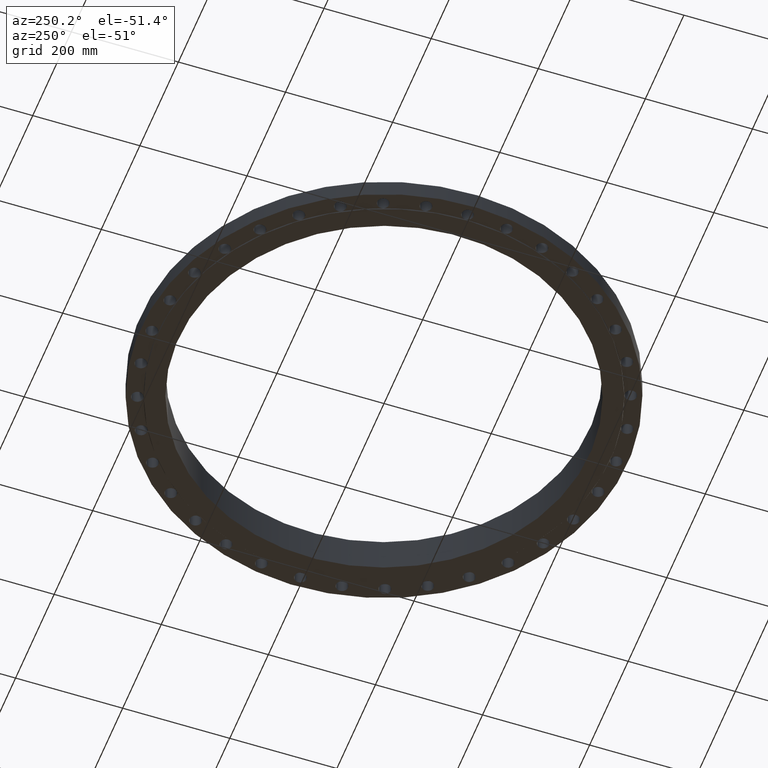
[diagram: clean part render]
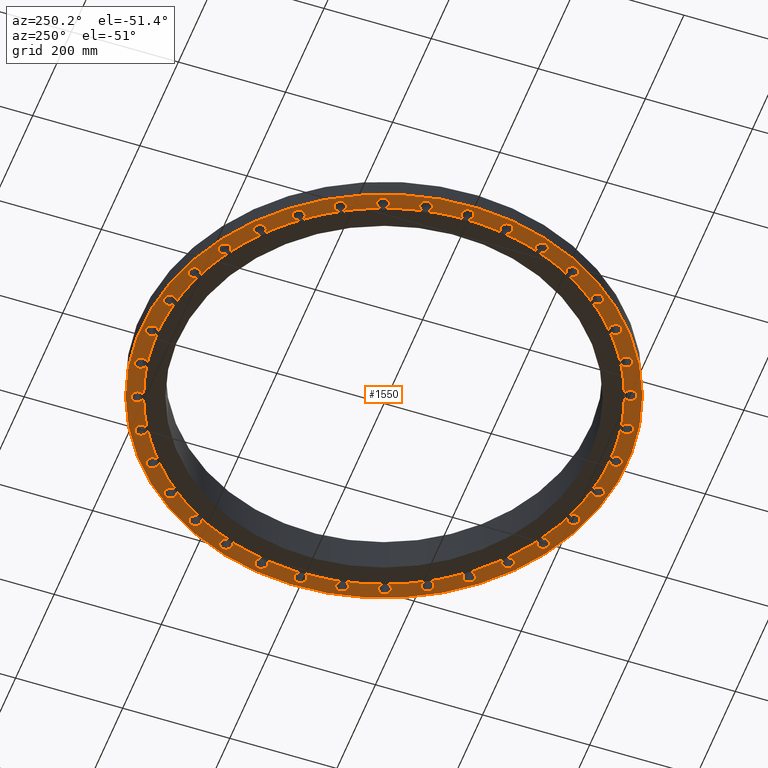
[diagram: same view with one face highlighted and labeled with its STEP entity id]
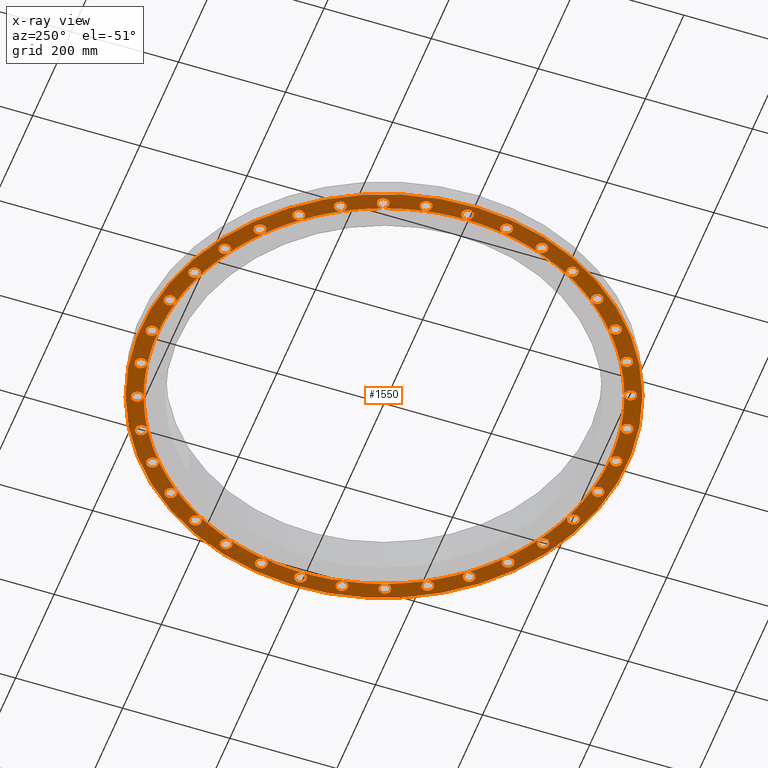
[diagram: x-ray of the same camera — body ghosted, the highlighted face saturated]
A machine part, auxiliary view. The second image highlights one B-rep face of the part: STEP entity #1550.
The next image is the same camera in x-ray: the body ghosted, the highlighted face saturated — about 0% of this face is hidden behind the body in this view.
In plain terms, the highlighted planar face has unit normal (0, 0, -1).
Its self-contained STEP definition (entity closure, byte-faithful):
#51=AXIS2_PLACEMENT_3D('Circle Axis2P3D',#49,#50,$) ;
#77=AXIS2_PLACEMENT_3D('Circle Axis2P3D',#75,#76,$) ;
#84=AXIS2_PLACEMENT_3D('Circle Axis2P3D',#82,#83,$) ;
#107=AXIS2_PLACEMENT_3D('Circle Axis2P3D',#105,#106,$) ;
#142=AXIS2_PLACEMENT_3D('Circle Axis2P3D',#140,#141,$) ;
#413=AXIS2_PLACEMENT_3D('Circle Axis2P3D',#411,#412,$) ;
#420=AXIS2_PLACEMENT_3D('Circle Axis2P3D',#418,#419,$) ;
#427=AXIS2_PLACEMENT_3D('Circle Axis2P3D',#425,#426,$) ;
#434=AXIS2_PLACEMENT_3D('Circle Axis2P3D',#432,#433,$) ;
#441=AXIS2_PLACEMENT_3D('Circle Axis2P3D',#439,#440,$) ;
#448=AXIS2_PLACEMENT_3D('Circle Axis2P3D',#446,#447,$) ;
#455=AXIS2_PLACEMENT_3D('Circle Axis2P3D',#453,#454,$) ;
#460=AXIS2_PLACEMENT_3D('Circle Axis2P3D',#458,#459,$) ;
#467=AXIS2_PLACEMENT_3D('Circle Axis2P3D',#465,#466,$) ;
#474=AXIS2_PLACEMENT_3D('Circle Axis2P3D',#472,#473,$) ;
#481=AXIS2_PLACEMENT_3D('Circle Axis2P3D',#479,#480,$) ;
#488=AXIS2_PLACEMENT_3D('Circle Axis2P3D',#486,#487,$) ;
#495=AXIS2_PLACEMENT_3D('Circle Axis2P3D',#493,#494,$) ;
#502=AXIS2_PLACEMENT_3D('Circle Axis2P3D',#500,#501,$) ;
#509=AXIS2_PLACEMENT_3D('Circle Axis2P3D',#507,#508,$) ;
#516=AXIS2_PLACEMENT_3D('Circle Axis2P3D',#514,#515,$) ;
#523=AXIS2_PLACEMENT_3D('Circle Axis2P3D',#521,#522,$) ;
#530=AXIS2_PLACEMENT_3D('Circle Axis2P3D',#528,#529,$) ;
#537=AXIS2_PLACEMENT_3D('Circle Axis2P3D',#535,#536,$) ;
#574=AXIS2_PLACEMENT_3D('Circle Axis2P3D',#572,#573,$) ;
#581=AXIS2_PLACEMENT_3D('Circle Axis2P3D',#579,#580,$) ;
#588=AXIS2_PLACEMENT_3D('Circle Axis2P3D',#586,#587,$) ;
#595=AXIS2_PLACEMENT_3D('Circle Axis2P3D',#593,#594,$) ;
#602=AXIS2_PLACEMENT_3D('Circle Axis2P3D',#600,#601,$) ;
#609=AXIS2_PLACEMENT_3D('Circle Axis2P3D',#607,#608,$) ;
#616=AXIS2_PLACEMENT_3D('Circle Axis2P3D',#614,#615,$) ;
#623=AXIS2_PLACEMENT_3D('Circle Axis2P3D',#621,#622,$) ;
#630=AXIS2_PLACEMENT_3D('Circle Axis2P3D',#628,#629,$) ;
#637=AXIS2_PLACEMENT_3D('Circle Axis2P3D',#635,#636,$) ;
#644=AXIS2_PLACEMENT_3D('Circle Axis2P3D',#642,#643,$) ;
#651=AXIS2_PLACEMENT_3D('Circle Axis2P3D',#649,#650,$) ;
#658=AXIS2_PLACEMENT_3D('Circle Axis2P3D',#656,#657,$) ;
#665=AXIS2_PLACEMENT_3D('Circle Axis2P3D',#663,#664,$) ;
#672=AXIS2_PLACEMENT_3D('Circle Axis2P3D',#670,#671,$) ;
#679=AXIS2_PLACEMENT_3D('Circle Axis2P3D',#677,#678,$) ;
#686=AXIS2_PLACEMENT_3D('Circle Axis2P3D',#684,#685,$) ;
#693=AXIS2_PLACEMENT_3D('Circle Axis2P3D',#691,#692,$) ;
#700=AXIS2_PLACEMENT_3D('Circle Axis2P3D',#698,#699,$) ;
#731=AXIS2_PLACEMENT_3D('Plane Axis2P3D',#728,#729,#730) ;
#739=AXIS2_PLACEMENT_3D('Circle Axis2P3D',#737,#738,$) ;
#746=AXIS2_PLACEMENT_3D('Circle Axis2P3D',#744,#745,$) ;
#753=AXIS2_PLACEMENT_3D('Circle Axis2P3D',#751,#752,$) ;
#758=AXIS2_PLACEMENT_3D('Circle Axis2P3D',#756,#757,$) ;
#765=AXIS2_PLACEMENT_3D('Circle Axis2P3D',#763,#764,$) ;
#772=AXIS2_PLACEMENT_3D('Circle Axis2P3D',#770,#771,$) ;
#777=AXIS2_PLACEMENT_3D('Circle Axis2P3D',#775,#776,$) ;
#784=AXIS2_PLACEMENT_3D('Circle Axis2P3D',#782,#783,$) ;
#791=AXIS2_PLACEMENT_3D('Circle Axis2P3D',#789,#790,$) ;
#796=AXIS2_PLACEMENT_3D('Circle Axis2P3D',#794,#795,$) ;
#803=AXIS2_PLACEMENT_3D('Circle Axis2P3D',#801,#802,$) ;
#810=AXIS2_PLACEMENT_3D('Circle Axis2P3D',#808,#809,$) ;
#815=AXIS2_PLACEMENT_3D('Circle Axis2P3D',#813,#814,$) ;
#822=AXIS2_PLACEMENT_3D('Circle Axis2P3D',#820,#821,$) ;
#829=AXIS2_PLACEMENT_3D('Circle Axis2P3D',#827,#828,$) ;
#834=AXIS2_PLACEMENT_3D('Circle Axis2P3D',#832,#833,$) ;
#841=AXIS2_PLACEMENT_3D('Circle Axis2P3D',#839,#840,$) ;
#848=AXIS2_PLACEMENT_3D('Circle Axis2P3D',#846,#847,$) ;
#853=AXIS2_PLACEMENT_3D('Circle Axis2P3D',#851,#852,$) ;
#860=AXIS2_PLACEMENT_3D('Circle Axis2P3D',#858,#859,$) ;
#867=AXIS2_PLACEMENT_3D('Circle Axis2P3D',#865,#866,$) ;
#872=AXIS2_PLACEMENT_3D('Circle Axis2P3D',#870,#871,$) ;
#879=AXIS2_PLACEMENT_3D('Circle Axis2P3D',#877,#878,$) ;
#886=AXIS2_PLACEMENT_3D('Circle Axis2P3D',#884,#885,$) ;
#891=AXIS2_PLACEMENT_3D('Circle Axis2P3D',#889,#890,$) ;
#898=AXIS2_PLACEMENT_3D('Circle Axis2P3D',#896,#897,$) ;
#905=AXIS2_PLACEMENT_3D('Circle Axis2P3D',#903,#904,$) ;
#910=AXIS2_PLACEMENT_3D('Circle Axis2P3D',#908,#909,$) ;
#917=AXIS2_PLACEMENT_3D('Circle Axis2P3D',#915,#916,$) ;
#924=AXIS2_PLACEMENT_3D('Circle Axis2P3D',#922,#923,$) ;
#929=AXIS2_PLACEMENT_3D('Circle Axis2P3D',#927,#928,$) ;
#936=AXIS2_PLACEMENT_3D('Circle Axis2P3D',#934,#935,$) ;
#943=AXIS2_PLACEMENT_3D('Circle Axis2P3D',#941,#942,$) ;
#948=AXIS2_PLACEMENT_3D('Circle Axis2P3D',#946,#947,$) ;
#955=AXIS2_PLACEMENT_3D('Circle Axis2P3D',#953,#954,$) ;
#962=AXIS2_PLACEMENT_3D('Circle Axis2P3D',#960,#961,$) ;
#967=AXIS2_PLACEMENT_3D('Circle Axis2P3D',#965,#966,$) ;
#974=AXIS2_PLACEMENT_3D('Circle Axis2P3D',#972,#973,$) ;
#981=AXIS2_PLACEMENT_3D('Circle Axis2P3D',#979,#980,$) ;
#986=AXIS2_PLACEMENT_3D('Circle Axis2P3D',#984,#985,$) ;
#993=AXIS2_PLACEMENT_3D('Circle Axis2P3D',#991,#992,$) ;
#1000=AXIS2_PLACEMENT_3D('Circle Axis2P3D',#998,#999,$) ;
#1005=AXIS2_PLACEMENT_3D('Circle Axis2P3D',#1003,#1004,$) ;
#1012=AXIS2_PLACEMENT_3D('Circle Axis2P3D',#1010,#1011,$) ;
#1019=AXIS2_PLACEMENT_3D('Circle Axis2P3D',#1017,#1018,$) ;
#1024=AXIS2_PLACEMENT_3D('Circle Axis2P3D',#1022,#1023,$) ;
#1031=AXIS2_PLACEMENT_3D('Circle Axis2P3D',#1029,#1030,$) ;
#1038=AXIS2_PLACEMENT_3D('Circle Axis2P3D',#1036,#1037,$) ;
#1043=AXIS2_PLACEMENT_3D('Circle Axis2P3D',#1041,#1042,$) ;
#1050=AXIS2_PLACEMENT_3D('Circle Axis2P3D',#1048,#1049,$) ;
#1057=AXIS2_PLACEMENT_3D('Circle Axis2P3D',#1055,#1056,$) ;
#1062=AXIS2_PLACEMENT_3D('Circle Axis2P3D',#1060,#1061,$) ;
#1069=AXIS2_PLACEMENT_3D('Circle Axis2P3D',#1067,#1068,$) ;
#1076=AXIS2_PLACEMENT_3D('Circle Axis2P3D',#1074,#1075,$) ;
#1081=AXIS2_PLACEMENT_3D('Circle Axis2P3D',#1079,#1080,$) ;
#1088=AXIS2_PLACEMENT_3D('Circle Axis2P3D',#1086,#1087,$) ;
#1095=AXIS2_PLACEMENT_3D('Circle Axis2P3D',#1093,#1094,$) ;
#1100=AXIS2_PLACEMENT_3D('Circle Axis2P3D',#1098,#1099,$) ;
#1107=AXIS2_PLACEMENT_3D('Circle Axis2P3D',#1105,#1106,$) ;
#1114=AXIS2_PLACEMENT_3D('Circle Axis2P3D',#1112,#1113,$) ;
#1119=AXIS2_PLACEMENT_3D('Circle Axis2P3D',#1117,#1118,$) ;
#1126=AXIS2_PLACEMENT_3D('Circle Axis2P3D',#1124,#1125,$) ;
#1133=AXIS2_PLACEMENT_3D('Circle Axis2P3D',#1131,#1132,$) ;
#1138=AXIS2_PLACEMENT_3D('Circle Axis2P3D',#1136,#1137,$) ;
#1145=AXIS2_PLACEMENT_3D('Circle Axis2P3D',#1143,#1144,$) ;
#1152=AXIS2_PLACEMENT_3D('Circle Axis2P3D',#1150,#1151,$) ;
#1157=AXIS2_PLACEMENT_3D('Circle Axis2P3D',#1155,#1156,$) ;
#1164=AXIS2_PLACEMENT_3D('Circle Axis2P3D',#1162,#1163,$) ;
#1171=AXIS2_PLACEMENT_3D('Circle Axis2P3D',#1169,#1170,$) ;
#1176=AXIS2_PLACEMENT_3D('Circle Axis2P3D',#1174,#1175,$) ;
#1183=AXIS2_PLACEMENT_3D('Circle Axis2P3D',#1181,#1182,$) ;
#1190=AXIS2_PLACEMENT_3D('Circle Axis2P3D',#1188,#1189,$) ;
#1195=AXIS2_PLACEMENT_3D('Circle Axis2P3D',#1193,#1194,$) ;
#1202=AXIS2_PLACEMENT_3D('Circle Axis2P3D',#1200,#1201,$) ;
#1209=AXIS2_PLACEMENT_3D('Circle Axis2P3D',#1207,#1208,$) ;
#1214=AXIS2_PLACEMENT_3D('Circle Axis2P3D',#1212,#1213,$) ;
#1221=AXIS2_PLACEMENT_3D('Circle Axis2P3D',#1219,#1220,$) ;
#1228=AXIS2_PLACEMENT_3D('Circle Axis2P3D',#1226,#1227,$) ;
#1233=AXIS2_PLACEMENT_3D('Circle Axis2P3D',#1231,#1232,$) ;
#1240=AXIS2_PLACEMENT_3D('Circle Axis2P3D',#1238,#1239,$) ;
#1247=AXIS2_PLACEMENT_3D('Circle Axis2P3D',#1245,#1246,$) ;
#1252=AXIS2_PLACEMENT_3D('Circle Axis2P3D',#1250,#1251,$) ;
#1259=AXIS2_PLACEMENT_3D('Circle Axis2P3D',#1257,#1258,$) ;
#1266=AXIS2_PLACEMENT_3D('Circle Axis2P3D',#1264,#1265,$) ;
#1271=AXIS2_PLACEMENT_3D('Circle Axis2P3D',#1269,#1270,$) ;
#1278=AXIS2_PLACEMENT_3D('Circle Axis2P3D',#1276,#1277,$) ;
#1285=AXIS2_PLACEMENT_3D('Circle Axis2P3D',#1283,#1284,$) ;
#1290=AXIS2_PLACEMENT_3D('Circle Axis2P3D',#1288,#1289,$) ;
#1297=AXIS2_PLACEMENT_3D('Circle Axis2P3D',#1295,#1296,$) ;
#1304=AXIS2_PLACEMENT_3D('Circle Axis2P3D',#1302,#1303,$) ;
#1309=AXIS2_PLACEMENT_3D('Circle Axis2P3D',#1307,#1308,$) ;
#1316=AXIS2_PLACEMENT_3D('Circle Axis2P3D',#1314,#1315,$) ;
#1323=AXIS2_PLACEMENT_3D('Circle Axis2P3D',#1321,#1322,$) ;
#1328=AXIS2_PLACEMENT_3D('Circle Axis2P3D',#1326,#1327,$) ;
#1335=AXIS2_PLACEMENT_3D('Circle Axis2P3D',#1333,#1334,$) ;
#1342=AXIS2_PLACEMENT_3D('Circle Axis2P3D',#1340,#1341,$) ;
#1347=AXIS2_PLACEMENT_3D('Circle Axis2P3D',#1345,#1346,$) ;
#1354=AXIS2_PLACEMENT_3D('Circle Axis2P3D',#1352,#1353,$) ;
#1361=AXIS2_PLACEMENT_3D('Circle Axis2P3D',#1359,#1360,$) ;
#1366=AXIS2_PLACEMENT_3D('Circle Axis2P3D',#1364,#1365,$) ;
#1373=AXIS2_PLACEMENT_3D('Circle Axis2P3D',#1371,#1372,$) ;
#1380=AXIS2_PLACEMENT_3D('Circle Axis2P3D',#1378,#1379,$) ;
#1385=AXIS2_PLACEMENT_3D('Circle Axis2P3D',#1383,#1384,$) ;
#1392=AXIS2_PLACEMENT_3D('Circle Axis2P3D',#1390,#1391,$) ;
#1399=AXIS2_PLACEMENT_3D('Circle Axis2P3D',#1397,#1398,$) ;
#44=CARTESIAN_POINT('Vertex',(16.6788636728,0.210947236987,0.)) ;
#49=CARTESIAN_POINT('Axis2P3D Location',(17.0650000001,0.,0.)) ;
#53=CARTESIAN_POINT('Vertex',(17.4511363273,-0.210947236987,0.)) ;
#75=CARTESIAN_POINT('Axis2P3D Location',(17.0650000001,0.,0.)) ;
#79=CARTESIAN_POINT('Vertex',(16.6250000001,1.88379168348E-014,1.95818864186E-015)) ;
#82=CARTESIAN_POINT('Axis2P3D Location',(17.0650000001,0.,0.)) ;
#105=CARTESIAN_POINT('Axis2P3D Location',(0.,0.,2.23792987641E-015)) ;
#109=CARTESIAN_POINT('Vertex',(-8.56973150258,-15.6867882939,2.23792987641E-015)) ;
#111=CARTESIAN_POINT('Vertex',(8.56973150258,15.6867882939,2.23792987641E-015)) ;
#140=CARTESIAN_POINT('Axis2P3D Location',(0.,0.,2.23792987641E-015)) ;
#408=CARTESIAN_POINT('Vertex',(7.97044957933,14.5898100915,1.95818864186E-015)) ;
#411=CARTESIAN_POINT('Axis2P3D Location',(0.,0.,1.95818864186E-015)) ;
#415=CARTESIAN_POINT('Vertex',(8.31250000003,14.397672338,0.)) ;
#418=CARTESIAN_POINT('Axis2P3D Location',(0.,0.,1.95818864186E-015)) ;
#422=CARTESIAN_POINT('Vertex',(10.6863440111,12.7354888669,0.)) ;
#425=CARTESIAN_POINT('Axis2P3D Location',(0.,0.,1.95818864186E-015)) ;
#429=CARTESIAN_POINT('Vertex',(12.7354888669,10.6863440111,0.)) ;
#432=CARTESIAN_POINT('Axis2P3D Location',(0.,0.,1.95818864186E-015)) ;
#436=CARTESIAN_POINT('Vertex',(14.397672338,8.31250000003,0.)) ;
#439=CARTESIAN_POINT('Axis2P3D Location',(0.,0.,1.95818864186E-015)) ;
#443=CARTESIAN_POINT('Vertex',(15.6223898206,5.68608488281,0.)) ;
#446=CARTESIAN_POINT('Axis2P3D Location',(0.,0.,1.95818864186E-015)) ;
#450=CARTESIAN_POINT('Vertex',(16.3724288939,2.88690095372,0.)) ;
#453=CARTESIAN_POINT('Axis2P3D Location',(0.,0.,1.95818864186E-015)) ;
#458=CARTESIAN_POINT('Axis2P3D Location',(0.,0.,1.95818864186E-015)) ;
#462=CARTESIAN_POINT('Vertex',(16.3724288939,-2.88690095372,0.)) ;
#465=CARTESIAN_POINT('Axis2P3D Location',(0.,0.,1.95818864186E-015)) ;
#469=CARTESIAN_POINT('Vertex',(15.6223898206,-5.68608488281,0.)) ;
#472=CARTESIAN_POINT('Axis2P3D Location',(0.,0.,1.95818864186E-015)) ;
#476=CARTESIAN_POINT('Vertex',(14.397672338,-8.31250000003,0.)) ;
#479=CARTESIAN_POINT('Axis2P3D Location',(0.,0.,1.95818864186E-015)) ;
#483=CARTESIAN_POINT('Vertex',(12.7354888669,-10.6863440111,0.)) ;
#486=CARTESIAN_POINT('Axis2P3D Location',(0.,0.,1.95818864186E-015)) ;
#490=CARTESIAN_POINT('Vertex',(10.6863440111,-12.7354888669,0.)) ;
#493=CARTESIAN_POINT('Axis2P3D Location',(0.,0.,1.95818864186E-015)) ;
#497=CARTESIAN_POINT('Vertex',(8.31250000003,-14.397672338,0.)) ;
#500=CARTESIAN_POINT('Axis2P3D Location',(0.,0.,1.95818864186E-015)) ;
#504=CARTESIAN_POINT('Vertex',(5.68608488281,-15.6223898206,0.)) ;
#507=CARTESIAN_POINT('Axis2P3D Location',(0.,0.,1.95818864186E-015)) ;
#511=CARTESIAN_POINT('Vertex',(2.88690095372,-16.3724288939,0.)) ;
#514=CARTESIAN_POINT('Axis2P3D Location',(0.,0.,1.95818864186E-015)) ;
#518=CARTESIAN_POINT('Vertex',(1.87736195311E-015,-16.6250000001,0.)) ;
#521=CARTESIAN_POINT('Axis2P3D Location',(0.,0.,1.95818864186E-015)) ;
#525=CARTESIAN_POINT('Vertex',(-2.88690095372,-16.3724288939,0.)) ;
#528=CARTESIAN_POINT('Axis2P3D Location',(0.,0.,1.95818864186E-015)) ;
#532=CARTESIAN_POINT('Vertex',(-5.68608488281,-15.6223898206,0.)) ;
#535=CARTESIAN_POINT('Axis2P3D Location',(0.,0.,1.95818864186E-015)) ;
#539=CARTESIAN_POINT('Vertex',(-7.97044957933,-14.5898100915,1.95818864186E-015)) ;
#572=CARTESIAN_POINT('Axis2P3D Location',(0.,0.,1.95818864186E-015)) ;
#576=CARTESIAN_POINT('Vertex',(-8.31250000003,-14.397672338,0.)) ;
#579=CARTESIAN_POINT('Axis2P3D Location',(0.,0.,1.95818864186E-015)) ;
#583=CARTESIAN_POINT('Vertex',(-10.6863440111,-12.7354888669,0.)) ;
#586=CARTESIAN_POINT('Axis2P3D Location',(0.,0.,1.95818864186E-015)) ;
#590=CARTESIAN_POINT('Vertex',(-12.7354888669,-10.6863440111,0.)) ;
#593=CARTESIAN_POINT('Axis2P3D Location',(0.,0.,1.95818864186E-015)) ;
#597=CARTESIAN_POINT('Vertex',(-14.397672338,-8.31250000003,0.)) ;
#600=CARTESIAN_POINT('Axis2P3D Location',(0.,0.,1.95818864186E-015)) ;
#604=CARTESIAN_POINT('Vertex',(-15.6223898206,-5.68608488281,0.)) ;
#607=CARTESIAN_POINT('Axis2P3D Location',(0.,0.,1.95818864186E-015)) ;
#611=CARTESIAN_POINT('Vertex',(-16.3724288939,-2.88690095372,0.)) ;
#614=CARTESIAN_POINT('Axis2P3D Location',(0.,0.,1.95818864186E-015)) ;
#618=CARTESIAN_POINT('Vertex',(-16.6250000001,0.,0.)) ;
#621=CARTESIAN_POINT('Axis2P3D Location',(0.,0.,1.95818864186E-015)) ;
#625=CARTESIAN_POINT('Vertex',(-16.3724288939,2.88690095372,0.)) ;
#628=CARTESIAN_POINT('Axis2P3D Location',(0.,0.,1.95818864186E-015)) ;
#632=CARTESIAN_POINT('Vertex',(-15.6223898206,5.68608488281,0.)) ;
#635=CARTESIAN_POINT('Axis2P3D Location',(0.,0.,1.95818864186E-015)) ;
#639=CARTESIAN_POINT('Vertex',(-14.397672338,8.31250000003,0.)) ;
#642=CARTESIAN_POINT('Axis2P3D Location',(0.,0.,1.95818864186E-015)) ;
#646=CARTESIAN_POINT('Vertex',(-12.7354888669,10.6863440111,0.)) ;
#649=CARTESIAN_POINT('Axis2P3D Location',(0.,0.,1.95818864186E-015)) ;
#653=CARTESIAN_POINT('Vertex',(-10.6863440111,12.7354888669,0.)) ;
#656=CARTESIAN_POINT('Axis2P3D Location',(0.,0.,1.95818864186E-015)) ;
#660=CARTESIAN_POINT('Vertex',(-8.31250000003,14.397672338,0.)) ;
#663=CARTESIAN_POINT('Axis2P3D Location',(0.,0.,1.95818864186E-015)) ;
#667=CARTESIAN_POINT('Vertex',(-5.68608488281,15.6223898206,0.)) ;
#670=CARTESIAN_POINT('Axis2P3D Location',(0.,0.,1.95818864186E-015)) ;
#674=CARTESIAN_POINT('Vertex',(-2.88690095372,16.3724288939,0.)) ;
#677=CARTESIAN_POINT('Axis2P3D Location',(0.,0.,1.95818864186E-015)) ;
#681=CARTESIAN_POINT('Vertex',(-2.21427599862E-015,16.6250000001,0.)) ;
#684=CARTESIAN_POINT('Axis2P3D Location',(0.,0.,1.95818864186E-015)) ;
#688=CARTESIAN_POINT('Vertex',(2.88690095372,16.3724288939,0.)) ;
#691=CARTESIAN_POINT('Axis2P3D Location',(0.,0.,1.95818864186E-015)) ;
#695=CARTESIAN_POINT('Vertex',(5.68608488281,15.6223898206,0.)) ;
#698=CARTESIAN_POINT('Axis2P3D Location',(0.,0.,1.95818864186E-015)) ;
#728=CARTESIAN_POINT('Axis2P3D Location',(0.,16.6250000001,0.)) ;
#737=CARTESIAN_POINT('Axis2P3D Location',(16.0358545738,-5.83657374588,0.)) ;
#741=CARTESIAN_POINT('Vertex',(16.3265558269,-6.16686570983,0.)) ;
#744=CARTESIAN_POINT('Axis2P3D Location',(16.0358545738,-5.83657374588,0.)) ;
#748=CARTESIAN_POINT('Vertex',(15.7451533207,-5.50628178192,0.)) ;
#751=CARTESIAN_POINT('Axis2P3D Location',(16.0358545738,-5.83657374588,0.)) ;
#756=CARTESIAN_POINT('Axis2P3D Location',(16.8057443052,-2.9633061519,0.)) ;
#760=CARTESIAN_POINT('Vertex',(17.1493837507,-3.23810049591,-1.1189649382E-015)) ;
#763=CARTESIAN_POINT('Axis2P3D Location',(16.8057443052,-2.9633061519,0.)) ;
#767=CARTESIAN_POINT('Vertex',(16.4621048597,-2.68851180788,0.)) ;
#770=CARTESIAN_POINT('Axis2P3D Location',(16.8057443052,-2.9633061519,0.)) ;
#775=CARTESIAN_POINT('Axis2P3D Location',(16.8057443052,2.9633061519,0.)) ;
#779=CARTESIAN_POINT('Vertex',(17.2226449573,2.82261554699,-1.1189649382E-015)) ;
#782=CARTESIAN_POINT('Axis2P3D Location',(16.8057443052,2.9633061519,0.)) ;
#786=CARTESIAN_POINT('Vertex',(16.3888436532,3.1039967568,0.)) ;
#789=CARTESIAN_POINT('Axis2P3D Location',(16.8057443052,2.9633061519,0.)) ;
#794=CARTESIAN_POINT('Axis2P3D Location',(16.0358545738,5.83657374588,0.)) ;
#798=CARTESIAN_POINT('Vertex',(16.4708522353,5.77041458589,0.)) ;
#801=CARTESIAN_POINT('Axis2P3D Location',(16.0358545738,5.83657374588,0.)) ;
#805=CARTESIAN_POINT('Vertex',(15.6008569122,5.90273290586,0.)) ;
#808=CARTESIAN_POINT('Axis2P3D Location',(16.0358545738,5.83657374588,0.)) ;
#813=CARTESIAN_POINT('Axis2P3D Location',(14.7787235156,8.53250000003,0.)) ;
#817=CARTESIAN_POINT('Vertex',(15.2186010028,8.54288249756,0.)) ;
#820=CARTESIAN_POINT('Axis2P3D Location',(14.7787235156,8.53250000003,0.)) ;
#824=CARTESIAN_POINT('Vertex',(14.3388460284,8.52211750251,0.)) ;
#827=CARTESIAN_POINT('Axis2P3D Location',(14.7787235156,8.53250000003,0.)) ;
#832=CARTESIAN_POINT('Axis2P3D Location',(13.0725484219,10.9691705593,0.)) ;
#836=CARTESIAN_POINT('Vertex',(13.5039402799,11.0557792475,0.)) ;
#839=CARTESIAN_POINT('Axis2P3D Location',(13.0725484219,10.9691705593,0.)) ;
#843=CARTESIAN_POINT('Vertex',(12.6411565639,10.8825618712,0.)) ;
#846=CARTESIAN_POINT('Axis2P3D Location',(13.0725484219,10.9691705593,0.)) ;
#851=CARTESIAN_POINT('Axis2P3D Location',(10.9691705593,13.0725484219,0.)) ;
#855=CARTESIAN_POINT('Vertex',(11.3789691648,13.2327517394,0.)) ;
#858=CARTESIAN_POINT('Axis2P3D Location',(10.9691705593,13.0725484219,0.)) ;
#862=CARTESIAN_POINT('Vertex',(10.5593719539,12.9123451043,0.)) ;
#865=CARTESIAN_POINT('Axis2P3D Location',(10.9691705593,13.0725484219,0.)) ;
#870=CARTESIAN_POINT('Axis2P3D Location',(8.53250000003,14.7787235156,0.)) ;
#874=CARTESIAN_POINT('Vertex',(8.90825382974,15.0076537659,0.)) ;
#877=CARTESIAN_POINT('Axis2P3D Location',(8.53250000003,14.7787235156,0.)) ;
#881=CARTESIAN_POINT('Vertex',(8.15674617033,14.5497932654,0.)) ;
#884=CARTESIAN_POINT('Axis2P3D Location',(8.53250000003,14.7787235156,0.)) ;
#889=CARTESIAN_POINT('Axis2P3D Location',(5.83657374588,16.0358545738,0.)) ;
#893=CARTESIAN_POINT('Vertex',(6.16686570983,16.3265558269,0.)) ;
#896=CARTESIAN_POINT('Axis2P3D Location',(5.83657374588,16.0358545738,0.)) ;
#900=CARTESIAN_POINT('Vertex',(5.50628178192,15.7451533207,0.)) ;
#903=CARTESIAN_POINT('Axis2P3D Location',(5.83657374588,16.0358545738,0.)) ;
#908=CARTESIAN_POINT('Axis2P3D Location',(2.9633061519,16.8057443052,0.)) ;
#912=CARTESIAN_POINT('Vertex',(3.23810049591,17.1493837507,0.)) ;
#915=CARTESIAN_POINT('Axis2P3D Location',(2.9633061519,16.8057443052,0.)) ;
#919=CARTESIAN_POINT('Vertex',(2.68851180788,16.4621048597,0.)) ;
#922=CARTESIAN_POINT('Axis2P3D Location',(2.9633061519,16.8057443052,0.)) ;
#927=CARTESIAN_POINT('Axis2P3D Location',(-1.95818864186E-015,17.0650000001,0.)) ;
#931=CARTESIAN_POINT('Vertex',(0.210947236987,17.4511363273,0.)) ;
#934=CARTESIAN_POINT('Axis2P3D Location',(-3.28695950598E-015,17.0650000001,0.)) ;
#938=CARTESIAN_POINT('Vertex',(-0.210947236987,16.6788636728,0.)) ;
#941=CARTESIAN_POINT('Axis2P3D Location',(-1.95818864186E-015,17.0650000001,0.)) ;
#946=CARTESIAN_POINT('Axis2P3D Location',(-2.9633061519,16.8057443052,0.)) ;
#950=CARTESIAN_POINT('Vertex',(-2.82261554699,17.2226449573,-1.1189649382E-015)) ;
#953=CARTESIAN_POINT('Axis2P3D Location',(-2.9633061519,16.8057443052,0.)) ;
#957=CARTESIAN_POINT('Vertex',(-3.1039967568,16.3888436532,0.)) ;
#960=CARTESIAN_POINT('Axis2P3D Location',(-2.9633061519,16.8057443052,0.)) ;
#965=CARTESIAN_POINT('Axis2P3D Location',(-5.83657374588,16.0358545738,0.)) ;
#969=CARTESIAN_POINT('Vertex',(-5.77041458589,16.4708522353,-1.1189649382E-015)) ;
#972=CARTESIAN_POINT('Axis2P3D Location',(-5.83657374588,16.0358545738,0.)) ;
#976=CARTESIAN_POINT('Vertex',(-5.90273290586,15.6008569122,0.)) ;
#979=CARTESIAN_POINT('Axis2P3D Location',(-5.83657374588,16.0358545738,0.)) ;
#984=CARTESIAN_POINT('Axis2P3D Location',(-8.53250000003,14.7787235156,0.)) ;
#988=CARTESIAN_POINT('Vertex',(-8.54288249756,15.2186010028,0.)) ;
#991=CARTESIAN_POINT('Axis2P3D Location',(-8.53250000003,14.7787235156,0.)) ;
#995=CARTESIAN_POINT('Vertex',(-8.52211750251,14.3388460284,0.)) ;
#998=CARTESIAN_POINT('Axis2P3D Location',(-8.53250000003,14.7787235156,0.)) ;
#1003=CARTESIAN_POINT('Axis2P3D Location',(-10.9691705593,13.0725484219,0.)) ;
#1007=CARTESIAN_POINT('Vertex',(-11.0557792475,13.5039402799,0.)) ;
#1010=CARTESIAN_POINT('Axis2P3D Location',(-10.9691705593,13.0725484219,0.)) ;
#1014=CARTESIAN_POINT('Vertex',(-10.8825618712,12.6411565639,0.)) ;
#1017=CARTESIAN_POINT('Axis2P3D Location',(-10.9691705593,13.0725484219,0.)) ;
#1022=CARTESIAN_POINT('Axis2P3D Location',(-13.0725484219,10.9691705593,0.)) ;
#1026=CARTESIAN_POINT('Vertex',(-13.2327517394,11.3789691648,-1.1189649382E-015)) ;
#1029=CARTESIAN_POINT('Axis2P3D Location',(-13.0725484219,10.9691705593,0.)) ;
#1033=CARTESIAN_POINT('Vertex',(-12.9123451043,10.5593719539,0.)) ;
#1036=CARTESIAN_POINT('Axis2P3D Location',(-13.0725484219,10.9691705593,0.)) ;
#1041=CARTESIAN_POINT('Axis2P3D Location',(-14.7787235156,8.53250000003,0.)) ;
#1045=CARTESIAN_POINT('Vertex',(-15.0076537659,8.90825382974,0.)) ;
#1048=CARTESIAN_POINT('Axis2P3D Location',(-14.7787235156,8.53250000003,0.)) ;
#1052=CARTESIAN_POINT('Vertex',(-14.5497932654,8.15674617033,0.)) ;
#1055=CARTESIAN_POINT('Axis2P3D Location',(-14.7787235156,8.53250000003,0.)) ;
#1060=CARTESIAN_POINT('Axis2P3D Location',(-16.0358545738,5.83657374588,0.)) ;
#1064=CARTESIAN_POINT('Vertex',(-16.3265558269,6.16686570983,0.)) ;
#1067=CARTESIAN_POINT('Axis2P3D Location',(-16.0358545738,5.83657374588,0.)) ;
#1071=CARTESIAN_POINT('Vertex',(-15.7451533207,5.50628178192,0.)) ;
#1074=CARTESIAN_POINT('Axis2P3D Location',(-16.0358545738,5.83657374588,0.)) ;
#1079=CARTESIAN_POINT('Axis2P3D Location',(-16.8057443052,2.9633061519,0.)) ;
#1083=CARTESIAN_POINT('Vertex',(-17.1493837507,3.23810049591,0.)) ;
#1086=CARTESIAN_POINT('Axis2P3D Location',(-16.8057443052,2.9633061519,0.)) ;
#1090=CARTESIAN_POINT('Vertex',(-16.4621048597,2.68851180788,0.)) ;
#1093=CARTESIAN_POINT('Axis2P3D Location',(-16.8057443052,2.9633061519,0.)) ;
#1098=CARTESIAN_POINT('Axis2P3D Location',(-17.0650000001,0.,0.)) ;
#1102=CARTESIAN_POINT('Vertex',(-17.4511363273,0.210947236987,0.)) ;
#1105=CARTESIAN_POINT('Axis2P3D Location',(-17.0650000001,-4.47585975282E-015,0.)) ;
#1109=CARTESIAN_POINT('Vertex',(-16.6788636728,-0.210947236987,0.)) ;
#1112=CARTESIAN_POINT('Axis2P3D Location',(-17.0650000001,0.,0.)) ;
#1117=CARTESIAN_POINT('Axis2P3D Location',(-16.8057443052,-2.9633061519,0.)) ;
#1121=CARTESIAN_POINT('Vertex',(-17.2226449573,-2.82261554699,-1.1189649382E-015)) ;
#1124=CARTESIAN_POINT('Axis2P3D Location',(-16.8057443052,-2.9633061519,0.)) ;
#1128=CARTESIAN_POINT('Vertex',(-16.3888436532,-3.1039967568,0.)) ;
#1131=CARTESIAN_POINT('Axis2P3D Location',(-16.8057443052,-2.9633061519,0.)) ;
#1136=CARTESIAN_POINT('Axis2P3D Location',(-16.0358545738,-5.83657374588,0.)) ;
#1140=CARTESIAN_POINT('Vertex',(-16.4708522353,-5.77041458589,-1.1189649382E-015)) ;
#1143=CARTESIAN_POINT('Axis2P3D Location',(-16.0358545738,-5.83657374588,0.)) ;
#1147=CARTESIAN_POINT('Vertex',(-15.6008569122,-5.90273290586,0.)) ;
#1150=CARTESIAN_POINT('Axis2P3D Location',(-16.0358545738,-5.83657374588,0.)) ;
#1155=CARTESIAN_POINT('Axis2P3D Location',(-14.7787235156,-8.53250000003,0.)) ;
#1159=CARTESIAN_POINT('Vertex',(-15.2186010028,-8.54288249756,0.)) ;
#1162=CARTESIAN_POINT('Axis2P3D Location',(-14.7787235156,-8.53250000003,0.)) ;
#1166=CARTESIAN_POINT('Vertex',(-14.3388460284,-8.52211750251,0.)) ;
#1169=CARTESIAN_POINT('Axis2P3D Location',(-14.7787235156,-8.53250000003,0.)) ;
#1174=CARTESIAN_POINT('Axis2P3D Location',(-13.0725484219,-10.9691705593,0.)) ;
#1178=CARTESIAN_POINT('Vertex',(-13.5039402799,-11.0557792475,0.)) ;
#1181=CARTESIAN_POINT('Axis2P3D Location',(-13.0725484219,-10.9691705593,0.)) ;
#1185=CARTESIAN_POINT('Vertex',(-12.6411565639,-10.8825618712,0.)) ;
#1188=CARTESIAN_POINT('Axis2P3D Location',(-13.0725484219,-10.9691705593,0.)) ;
#1193=CARTESIAN_POINT('Axis2P3D Location',(-10.9691705593,-13.0725484219,0.)) ;
#1197=CARTESIAN_POINT('Vertex',(-11.3789691648,-13.2327517394,0.)) ;
#1200=CARTESIAN_POINT('Axis2P3D Location',(-10.9691705593,-13.0725484219,0.)) ;
#1204=CARTESIAN_POINT('Vertex',(-10.5593719539,-12.9123451043,0.)) ;
#1207=CARTESIAN_POINT('Axis2P3D Location',(-10.9691705593,-13.0725484219,0.)) ;
#1212=CARTESIAN_POINT('Axis2P3D Location',(-8.53250000003,-14.7787235156,0.)) ;
#1216=CARTESIAN_POINT('Vertex',(-8.90825382974,-15.0076537659,-1.1189649382E-015)) ;
#1219=CARTESIAN_POINT('Axis2P3D Location',(-8.53250000003,-14.7787235156,0.)) ;
#1223=CARTESIAN_POINT('Vertex',(-8.15674617033,-14.5497932654,0.)) ;
#1226=CARTESIAN_POINT('Axis2P3D Location',(-8.53250000003,-14.7787235156,0.)) ;
#1231=CARTESIAN_POINT('Axis2P3D Location',(-5.83657374588,-16.0358545738,0.)) ;
#1235=CARTESIAN_POINT('Vertex',(-6.16686570983,-16.3265558269,0.)) ;
#1238=CARTESIAN_POINT('Axis2P3D Location',(-5.83657374588,-16.0358545738,0.)) ;
#1242=CARTESIAN_POINT('Vertex',(-5.50628178192,-15.7451533207,0.)) ;
#1245=CARTESIAN_POINT('Axis2P3D Location',(-5.83657374588,-16.0358545738,0.)) ;
#1250=CARTESIAN_POINT('Axis2P3D Location',(-2.9633061519,-16.8057443052,0.)) ;
#1254=CARTESIAN_POINT('Vertex',(-3.23810049591,-17.1493837507,-1.1189649382E-015)) ;
#1257=CARTESIAN_POINT('Axis2P3D Location',(-2.9633061519,-16.8057443052,0.)) ;
#1261=CARTESIAN_POINT('Vertex',(-2.68851180788,-16.4621048597,0.)) ;
#1264=CARTESIAN_POINT('Axis2P3D Location',(-2.9633061519,-16.8057443052,0.)) ;
#1269=CARTESIAN_POINT('Axis2P3D Location',(1.95818864186E-015,-17.0650000001,0.)) ;
#1273=CARTESIAN_POINT('Vertex',(-0.210947236987,-17.4511363273,0.)) ;
#1276=CARTESIAN_POINT('Axis2P3D Location',(-1.39870617276E-015,-17.0650000001,0.)) ;
#1280=CARTESIAN_POINT('Vertex',(0.210947236987,-16.6788636728,0.)) ;
#1283=CARTESIAN_POINT('Axis2P3D Location',(1.95818864186E-015,-17.0650000001,0.)) ;
#1288=CARTESIAN_POINT('Axis2P3D Location',(2.9633061519,-16.8057443052,0.)) ;
#1292=CARTESIAN_POINT('Vertex',(2.82261554699,-17.2226449573,-1.1189649382E-015)) ;
#1295=CARTESIAN_POINT('Axis2P3D Location',(2.9633061519,-16.8057443052,0.)) ;
#1299=CARTESIAN_POINT('Vertex',(3.1039967568,-16.3888436532,0.)) ;
#1302=CARTESIAN_POINT('Axis2P3D Location',(2.9633061519,-16.8057443052,0.)) ;
#1307=CARTESIAN_POINT('Axis2P3D Location',(5.83657374588,-16.0358545738,0.)) ;
#1311=CARTESIAN_POINT('Vertex',(5.77041458589,-16.4708522353,-1.1189649382E-015)) ;
#1314=CARTESIAN_POINT('Axis2P3D Location',(5.83657374588,-16.0358545738,0.)) ;
#1318=CARTESIAN_POINT('Vertex',(5.90273290586,-15.6008569122,0.)) ;
#1321=CARTESIAN_POINT('Axis2P3D Location',(5.83657374588,-16.0358545738,0.)) ;
#1326=CARTESIAN_POINT('Axis2P3D Location',(8.53250000003,-14.7787235156,0.)) ;
#1330=CARTESIAN_POINT('Vertex',(8.54288249756,-15.2186010028,0.)) ;
#1333=CARTESIAN_POINT('Axis2P3D Location',(8.53250000003,-14.7787235156,0.)) ;
#1337=CARTESIAN_POINT('Vertex',(8.52211750251,-14.3388460284,0.)) ;
#1340=CARTESIAN_POINT('Axis2P3D Location',(8.53250000003,-14.7787235156,0.)) ;
#1345=CARTESIAN_POINT('Axis2P3D Location',(10.9691705593,-13.0725484219,0.)) ;
#1349=CARTESIAN_POINT('Vertex',(11.0557792475,-13.5039402799,0.)) ;
#1352=CARTESIAN_POINT('Axis2P3D Location',(10.9691705593,-13.0725484219,0.)) ;
#1356=CARTESIAN_POINT('Vertex',(10.8825618712,-12.6411565639,0.)) ;
#1359=CARTESIAN_POINT('Axis2P3D Location',(10.9691705593,-13.0725484219,0.)) ;
#1364=CARTESIAN_POINT('Axis2P3D Location',(13.0725484219,-10.9691705593,0.)) ;
#1368=CARTESIAN_POINT('Vertex',(13.2327517394,-11.3789691648,-1.1189649382E-015)) ;
#1371=CARTESIAN_POINT('Axis2P3D Location',(13.0725484219,-10.9691705593,0.)) ;
#1375=CARTESIAN_POINT('Vertex',(12.9123451043,-10.5593719539,0.)) ;
#1378=CARTESIAN_POINT('Axis2P3D Location',(13.0725484219,-10.9691705593,0.)) ;
#1383=CARTESIAN_POINT('Axis2P3D Location',(14.7787235156,-8.53250000003,0.)) ;
#1387=CARTESIAN_POINT('Vertex',(15.0076537659,-8.90825382974,0.)) ;
#1390=CARTESIAN_POINT('Axis2P3D Location',(14.7787235156,-8.53250000003,0.)) ;
#1394=CARTESIAN_POINT('Vertex',(14.5497932654,-8.15674617033,0.)) ;
#1397=CARTESIAN_POINT('Axis2P3D Location',(14.7787235156,-8.53250000003,0.)) ;
#50=DIRECTION('Axis2P3D Direction',(0.,-0.,-0.0393700787402)) ;
#76=DIRECTION('Axis2P3D Direction',(0.,-0.,-0.0393700787402)) ;
#83=DIRECTION('Axis2P3D Direction',(0.,-0.,-0.0393700787402)) ;
#106=DIRECTION('Axis2P3D Direction',(0.,0.,-0.0393700787402)) ;
#141=DIRECTION('Axis2P3D Direction',(0.,0.,-0.0393700787402)) ;
#412=DIRECTION('Axis2P3D Direction',(0.,0.,-0.0393700787402)) ;
#419=DIRECTION('Axis2P3D Direction',(0.,0.,-0.0393700787402)) ;
#426=DIRECTION('Axis2P3D Direction',(0.,0.,-0.0393700787402)) ;
#433=DIRECTION('Axis2P3D Direction',(0.,0.,-0.0393700787402)) ;
#440=DIRECTION('Axis2P3D Direction',(0.,0.,-0.0393700787402)) ;
#447=DIRECTION('Axis2P3D Direction',(0.,0.,-0.0393700787402)) ;
#454=DIRECTION('Axis2P3D Direction',(0.,0.,-0.0393700787402)) ;
#459=DIRECTION('Axis2P3D Direction',(0.,0.,-0.0393700787402)) ;
#466=DIRECTION('Axis2P3D Direction',(0.,0.,-0.0393700787402)) ;
#473=DIRECTION('Axis2P3D Direction',(0.,0.,-0.0393700787402)) ;
#480=DIRECTION('Axis2P3D Direction',(0.,0.,-0.0393700787402)) ;
#487=DIRECTION('Axis2P3D Direction',(0.,0.,-0.0393700787402)) ;
#494=DIRECTION('Axis2P3D Direction',(0.,0.,-0.0393700787402)) ;
#501=DIRECTION('Axis2P3D Direction',(0.,0.,-0.0393700787402)) ;
#508=DIRECTION('Axis2P3D Direction',(0.,0.,-0.0393700787402)) ;
#515=DIRECTION('Axis2P3D Direction',(0.,0.,-0.0393700787402)) ;
#522=DIRECTION('Axis2P3D Direction',(0.,0.,-0.0393700787402)) ;
#529=DIRECTION('Axis2P3D Direction',(0.,0.,-0.0393700787402)) ;
#536=DIRECTION('Axis2P3D Direction',(0.,0.,-0.0393700787402)) ;
#573=DIRECTION('Axis2P3D Direction',(0.,0.,-0.0393700787402)) ;
#580=DIRECTION('Axis2P3D Direction',(0.,0.,-0.0393700787402)) ;
#587=DIRECTION('Axis2P3D Direction',(0.,0.,-0.0393700787402)) ;
#594=DIRECTION('Axis2P3D Direction',(0.,0.,-0.0393700787402)) ;
#601=DIRECTION('Axis2P3D Direction',(0.,0.,-0.0393700787402)) ;
#608=DIRECTION('Axis2P3D Direction',(0.,0.,-0.0393700787402)) ;
#615=DIRECTION('Axis2P3D Direction',(0.,0.,-0.0393700787402)) ;
#622=DIRECTION('Axis2P3D Direction',(0.,0.,-0.0393700787402)) ;
#629=DIRECTION('Axis2P3D Direction',(0.,0.,-0.0393700787402)) ;
#636=DIRECTION('Axis2P3D Direction',(0.,0.,-0.0393700787402)) ;
#643=DIRECTION('Axis2P3D Direction',(0.,0.,-0.0393700787402)) ;
#650=DIRECTION('Axis2P3D Direction',(0.,0.,-0.0393700787402)) ;
#657=DIRECTION('Axis2P3D Direction',(0.,0.,-0.0393700787402)) ;
#664=DIRECTION('Axis2P3D Direction',(0.,0.,-0.0393700787402)) ;
#671=DIRECTION('Axis2P3D Direction',(0.,0.,-0.0393700787402)) ;
#678=DIRECTION('Axis2P3D Direction',(0.,0.,-0.0393700787402)) ;
#685=DIRECTION('Axis2P3D Direction',(0.,0.,-0.0393700787402)) ;
#692=DIRECTION('Axis2P3D Direction',(0.,0.,-0.0393700787402)) ;
#699=DIRECTION('Axis2P3D Direction',(0.,0.,-0.0393700787402)) ;
#729=DIRECTION('Axis2P3D Direction',(0.,0.,-0.0393700787402)) ;
#730=DIRECTION('Axis2P3D XDirection',(0.0393700787402,0.,0.)) ;
#738=DIRECTION('Axis2P3D Direction',(0.,0.,-0.0393700787402)) ;
#745=DIRECTION('Axis2P3D Direction',(0.,0.,-0.0393700787402)) ;
#752=DIRECTION('Axis2P3D Direction',(0.,0.,-0.0393700787402)) ;
#757=DIRECTION('Axis2P3D Direction',(0.,0.,-0.0393700787402)) ;
#764=DIRECTION('Axis2P3D Direction',(0.,0.,-0.0393700787402)) ;
#771=DIRECTION('Axis2P3D Direction',(0.,0.,-0.0393700787402)) ;
#776=DIRECTION('Axis2P3D Direction',(0.,0.,-0.0393700787402)) ;
#783=DIRECTION('Axis2P3D Direction',(0.,0.,-0.0393700787402)) ;
#790=DIRECTION('Axis2P3D Direction',(0.,0.,-0.0393700787402)) ;
#795=DIRECTION('Axis2P3D Direction',(0.,0.,-0.0393700787402)) ;
#802=DIRECTION('Axis2P3D Direction',(0.,0.,-0.0393700787402)) ;
#809=DIRECTION('Axis2P3D Direction',(0.,0.,-0.0393700787402)) ;
#814=DIRECTION('Axis2P3D Direction',(0.,0.,-0.0393700787402)) ;
#821=DIRECTION('Axis2P3D Direction',(0.,0.,-0.0393700787402)) ;
#828=DIRECTION('Axis2P3D Direction',(0.,0.,-0.0393700787402)) ;
#833=DIRECTION('Axis2P3D Direction',(0.,0.,-0.0393700787402)) ;
#840=DIRECTION('Axis2P3D Direction',(0.,0.,-0.0393700787402)) ;
#847=DIRECTION('Axis2P3D Direction',(0.,0.,-0.0393700787402)) ;
#852=DIRECTION('Axis2P3D Direction',(0.,0.,-0.0393700787402)) ;
#859=DIRECTION('Axis2P3D Direction',(0.,0.,-0.0393700787402)) ;
#866=DIRECTION('Axis2P3D Direction',(0.,0.,-0.0393700787402)) ;
#871=DIRECTION('Axis2P3D Direction',(0.,0.,-0.0393700787402)) ;
#878=DIRECTION('Axis2P3D Direction',(0.,0.,-0.0393700787402)) ;
#885=DIRECTION('Axis2P3D Direction',(0.,0.,-0.0393700787402)) ;
#890=DIRECTION('Axis2P3D Direction',(0.,0.,-0.0393700787402)) ;
#897=DIRECTION('Axis2P3D Direction',(0.,0.,-0.0393700787402)) ;
#904=DIRECTION('Axis2P3D Direction',(0.,0.,-0.0393700787402)) ;
#909=DIRECTION('Axis2P3D Direction',(0.,0.,-0.0393700787402)) ;
#916=DIRECTION('Axis2P3D Direction',(0.,0.,-0.0393700787402)) ;
#923=DIRECTION('Axis2P3D Direction',(0.,0.,-0.0393700787402)) ;
#928=DIRECTION('Axis2P3D Direction',(0.,0.,-0.0393700787402)) ;
#935=DIRECTION('Axis2P3D Direction',(0.,0.,-0.0393700787402)) ;
#942=DIRECTION('Axis2P3D Direction',(0.,0.,-0.0393700787402)) ;
#947=DIRECTION('Axis2P3D Direction',(0.,0.,-0.0393700787402)) ;
#954=DIRECTION('Axis2P3D Direction',(0.,0.,-0.0393700787402)) ;
#961=DIRECTION('Axis2P3D Direction',(0.,0.,-0.0393700787402)) ;
#966=DIRECTION('Axis2P3D Direction',(0.,0.,-0.0393700787402)) ;
#973=DIRECTION('Axis2P3D Direction',(0.,0.,-0.0393700787402)) ;
#980=DIRECTION('Axis2P3D Direction',(0.,0.,-0.0393700787402)) ;
#985=DIRECTION('Axis2P3D Direction',(0.,0.,-0.0393700787402)) ;
#992=DIRECTION('Axis2P3D Direction',(0.,0.,-0.0393700787402)) ;
#999=DIRECTION('Axis2P3D Direction',(0.,0.,-0.0393700787402)) ;
#1004=DIRECTION('Axis2P3D Direction',(0.,0.,-0.0393700787402)) ;
#1011=DIRECTION('Axis2P3D Direction',(0.,0.,-0.0393700787402)) ;
#1018=DIRECTION('Axis2P3D Direction',(0.,0.,-0.0393700787402)) ;
#1023=DIRECTION('Axis2P3D Direction',(0.,0.,-0.0393700787402)) ;
#1030=DIRECTION('Axis2P3D Direction',(0.,0.,-0.0393700787402)) ;
#1037=DIRECTION('Axis2P3D Direction',(0.,0.,-0.0393700787402)) ;
#1042=DIRECTION('Axis2P3D Direction',(0.,0.,-0.0393700787402)) ;
#1049=DIRECTION('Axis2P3D Direction',(0.,0.,-0.0393700787402)) ;
#1056=DIRECTION('Axis2P3D Direction',(0.,0.,-0.0393700787402)) ;
#1061=DIRECTION('Axis2P3D Direction',(0.,0.,-0.0393700787402)) ;
#1068=DIRECTION('Axis2P3D Direction',(0.,0.,-0.0393700787402)) ;
#1075=DIRECTION('Axis2P3D Direction',(0.,0.,-0.0393700787402)) ;
#1080=DIRECTION('Axis2P3D Direction',(0.,0.,-0.0393700787402)) ;
#1087=DIRECTION('Axis2P3D Direction',(0.,0.,-0.0393700787402)) ;
#1094=DIRECTION('Axis2P3D Direction',(0.,0.,-0.0393700787402)) ;
#1099=DIRECTION('Axis2P3D Direction',(0.,0.,-0.0393700787402)) ;
#1106=DIRECTION('Axis2P3D Direction',(0.,0.,-0.0393700787402)) ;
#1113=DIRECTION('Axis2P3D Direction',(0.,0.,-0.0393700787402)) ;
#1118=DIRECTION('Axis2P3D Direction',(0.,0.,-0.0393700787402)) ;
#1125=DIRECTION('Axis2P3D Direction',(0.,0.,-0.0393700787402)) ;
#1132=DIRECTION('Axis2P3D Direction',(0.,0.,-0.0393700787402)) ;
#1137=DIRECTION('Axis2P3D Direction',(0.,0.,-0.0393700787402)) ;
#1144=DIRECTION('Axis2P3D Direction',(0.,0.,-0.0393700787402)) ;
#1151=DIRECTION('Axis2P3D Direction',(0.,0.,-0.0393700787402)) ;
#1156=DIRECTION('Axis2P3D Direction',(0.,0.,-0.0393700787402)) ;
#1163=DIRECTION('Axis2P3D Direction',(0.,0.,-0.0393700787402)) ;
#1170=DIRECTION('Axis2P3D Direction',(0.,0.,-0.0393700787402)) ;
#1175=DIRECTION('Axis2P3D Direction',(0.,0.,-0.0393700787402)) ;
#1182=DIRECTION('Axis2P3D Direction',(0.,0.,-0.0393700787402)) ;
#1189=DIRECTION('Axis2P3D Direction',(0.,0.,-0.0393700787402)) ;
#1194=DIRECTION('Axis2P3D Direction',(0.,0.,-0.0393700787402)) ;
#1201=DIRECTION('Axis2P3D Direction',(0.,0.,-0.0393700787402)) ;
#1208=DIRECTION('Axis2P3D Direction',(0.,0.,-0.0393700787402)) ;
#1213=DIRECTION('Axis2P3D Direction',(0.,0.,-0.0393700787402)) ;
#1220=DIRECTION('Axis2P3D Direction',(0.,0.,-0.0393700787402)) ;
#1227=DIRECTION('Axis2P3D Direction',(0.,0.,-0.0393700787402)) ;
#1232=DIRECTION('Axis2P3D Direction',(0.,0.,-0.0393700787402)) ;
#1239=DIRECTION('Axis2P3D Direction',(0.,0.,-0.0393700787402)) ;
#1246=DIRECTION('Axis2P3D Direction',(0.,0.,-0.0393700787402)) ;
#1251=DIRECTION('Axis2P3D Direction',(0.,0.,-0.0393700787402)) ;
#1258=DIRECTION('Axis2P3D Direction',(0.,0.,-0.0393700787402)) ;
#1265=DIRECTION('Axis2P3D Direction',(0.,0.,-0.0393700787402)) ;
#1270=DIRECTION('Axis2P3D Direction',(0.,0.,-0.0393700787402)) ;
#1277=DIRECTION('Axis2P3D Direction',(0.,0.,-0.0393700787402)) ;
#1284=DIRECTION('Axis2P3D Direction',(0.,0.,-0.0393700787402)) ;
#1289=DIRECTION('Axis2P3D Direction',(0.,0.,-0.0393700787402)) ;
#1296=DIRECTION('Axis2P3D Direction',(0.,0.,-0.0393700787402)) ;
#1303=DIRECTION('Axis2P3D Direction',(0.,0.,-0.0393700787402)) ;
#1308=DIRECTION('Axis2P3D Direction',(0.,0.,-0.0393700787402)) ;
#1315=DIRECTION('Axis2P3D Direction',(0.,0.,-0.0393700787402)) ;
#1322=DIRECTION('Axis2P3D Direction',(0.,0.,-0.0393700787402)) ;
#1327=DIRECTION('Axis2P3D Direction',(0.,0.,-0.0393700787402)) ;
#1334=DIRECTION('Axis2P3D Direction',(0.,0.,-0.0393700787402)) ;
#1341=DIRECTION('Axis2P3D Direction',(0.,0.,-0.0393700787402)) ;
#1346=DIRECTION('Axis2P3D Direction',(0.,0.,-0.0393700787402)) ;
#1353=DIRECTION('Axis2P3D Direction',(0.,0.,-0.0393700787402)) ;
#1360=DIRECTION('Axis2P3D Direction',(0.,0.,-0.0393700787402)) ;
#1365=DIRECTION('Axis2P3D Direction',(0.,0.,-0.0393700787402)) ;
#1372=DIRECTION('Axis2P3D Direction',(0.,0.,-0.0393700787402)) ;
#1379=DIRECTION('Axis2P3D Direction',(0.,0.,-0.0393700787402)) ;
#1384=DIRECTION('Axis2P3D Direction',(0.,0.,-0.0393700787402)) ;
#1391=DIRECTION('Axis2P3D Direction',(0.,0.,-0.0393700787402)) ;
#1398=DIRECTION('Axis2P3D Direction',(0.,0.,-0.0393700787402)) ;
#734=ORIENTED_EDGE('',*,*,#113,.T.) ;
#735=ORIENTED_EDGE('',*,*,#144,.T.) ;
#1403=ORIENTED_EDGE('',*,*,#743,.F.) ;
#1404=ORIENTED_EDGE('',*,*,#750,.F.) ;
#1405=ORIENTED_EDGE('',*,*,#755,.F.) ;
#1406=ORIENTED_EDGE('',*,*,#471,.F.) ;
#1407=ORIENTED_EDGE('',*,*,#762,.F.) ;
#1408=ORIENTED_EDGE('',*,*,#769,.F.) ;
#1409=ORIENTED_EDGE('',*,*,#774,.F.) ;
#1410=ORIENTED_EDGE('',*,*,#464,.F.) ;
#1411=ORIENTED_EDGE('',*,*,#81,.F.) ;
#1412=ORIENTED_EDGE('',*,*,#55,.F.) ;
#1413=ORIENTED_EDGE('',*,*,#86,.F.) ;
#1414=ORIENTED_EDGE('',*,*,#457,.F.) ;
#1415=ORIENTED_EDGE('',*,*,#781,.F.) ;
#1416=ORIENTED_EDGE('',*,*,#788,.F.) ;
#1417=ORIENTED_EDGE('',*,*,#793,.F.) ;
#1418=ORIENTED_EDGE('',*,*,#452,.F.) ;
#1419=ORIENTED_EDGE('',*,*,#800,.F.) ;
#1420=ORIENTED_EDGE('',*,*,#807,.F.) ;
#1421=ORIENTED_EDGE('',*,*,#812,.F.) ;
#1422=ORIENTED_EDGE('',*,*,#445,.F.) ;
#1423=ORIENTED_EDGE('',*,*,#819,.F.) ;
#1424=ORIENTED_EDGE('',*,*,#826,.F.) ;
#1425=ORIENTED_EDGE('',*,*,#831,.F.) ;
#1426=ORIENTED_EDGE('',*,*,#438,.F.) ;
#1427=ORIENTED_EDGE('',*,*,#838,.F.) ;
#1428=ORIENTED_EDGE('',*,*,#845,.F.) ;
#1429=ORIENTED_EDGE('',*,*,#850,.F.) ;
#1430=ORIENTED_EDGE('',*,*,#431,.F.) ;
#1431=ORIENTED_EDGE('',*,*,#857,.F.) ;
#1432=ORIENTED_EDGE('',*,*,#864,.F.) ;
#1433=ORIENTED_EDGE('',*,*,#869,.F.) ;
#1434=ORIENTED_EDGE('',*,*,#424,.F.) ;
#1435=ORIENTED_EDGE('',*,*,#876,.F.) ;
#1436=ORIENTED_EDGE('',*,*,#883,.F.) ;
#1437=ORIENTED_EDGE('',*,*,#888,.F.) ;
#1438=ORIENTED_EDGE('',*,*,#417,.F.) ;
#1439=ORIENTED_EDGE('',*,*,#702,.F.) ;
#1440=ORIENTED_EDGE('',*,*,#895,.F.) ;
#1441=ORIENTED_EDGE('',*,*,#902,.F.) ;
#1442=ORIENTED_EDGE('',*,*,#907,.F.) ;
#1443=ORIENTED_EDGE('',*,*,#697,.F.) ;
#1444=ORIENTED_EDGE('',*,*,#914,.F.) ;
#1445=ORIENTED_EDGE('',*,*,#921,.F.) ;
#1446=ORIENTED_EDGE('',*,*,#926,.F.) ;
#1447=ORIENTED_EDGE('',*,*,#690,.F.) ;
#1448=ORIENTED_EDGE('',*,*,#933,.F.) ;
#1449=ORIENTED_EDGE('',*,*,#940,.F.) ;
#1450=ORIENTED_EDGE('',*,*,#945,.F.) ;
#1451=ORIENTED_EDGE('',*,*,#683,.F.) ;
#1452=ORIENTED_EDGE('',*,*,#952,.F.) ;
#1453=ORIENTED_EDGE('',*,*,#959,.F.) ;
#1454=ORIENTED_EDGE('',*,*,#964,.F.) ;
#1455=ORIENTED_EDGE('',*,*,#676,.F.) ;
#1456=ORIENTED_EDGE('',*,*,#971,.F.) ;
#1457=ORIENTED_EDGE('',*,*,#978,.F.) ;
#1458=ORIENTED_EDGE('',*,*,#983,.F.) ;
#1459=ORIENTED_EDGE('',*,*,#669,.F.) ;
#1460=ORIENTED_EDGE('',*,*,#990,.F.) ;
#1461=ORIENTED_EDGE('',*,*,#997,.F.) ;
#1462=ORIENTED_EDGE('',*,*,#1002,.F.) ;
#1463=ORIENTED_EDGE('',*,*,#662,.F.) ;
#1464=ORIENTED_EDGE('',*,*,#1009,.F.) ;
#1465=ORIENTED_EDGE('',*,*,#1016,.F.) ;
#1466=ORIENTED_EDGE('',*,*,#1021,.F.) ;
#1467=ORIENTED_EDGE('',*,*,#655,.F.) ;
#1468=ORIENTED_EDGE('',*,*,#1028,.F.) ;
#1469=ORIENTED_EDGE('',*,*,#1035,.F.) ;
#1470=ORIENTED_EDGE('',*,*,#1040,.F.) ;
#1471=ORIENTED_EDGE('',*,*,#648,.F.) ;
#1472=ORIENTED_EDGE('',*,*,#1047,.F.) ;
#1473=ORIENTED_EDGE('',*,*,#1054,.F.) ;
#1474=ORIENTED_EDGE('',*,*,#1059,.F.) ;
#1475=ORIENTED_EDGE('',*,*,#641,.F.) ;
#1476=ORIENTED_EDGE('',*,*,#1066,.F.) ;
#1477=ORIENTED_EDGE('',*,*,#1073,.F.) ;
#1478=ORIENTED_EDGE('',*,*,#1078,.F.) ;
#1479=ORIENTED_EDGE('',*,*,#634,.F.) ;
#1480=ORIENTED_EDGE('',*,*,#1085,.F.) ;
#1481=ORIENTED_EDGE('',*,*,#1092,.F.) ;
#1482=ORIENTED_EDGE('',*,*,#1097,.F.) ;
#1483=ORIENTED_EDGE('',*,*,#627,.F.) ;
#1484=ORIENTED_EDGE('',*,*,#1104,.F.) ;
#1485=ORIENTED_EDGE('',*,*,#1111,.F.) ;
#1486=ORIENTED_EDGE('',*,*,#1116,.F.) ;
#1487=ORIENTED_EDGE('',*,*,#620,.F.) ;
#1488=ORIENTED_EDGE('',*,*,#1123,.F.) ;
#1489=ORIENTED_EDGE('',*,*,#1130,.F.) ;
#1490=ORIENTED_EDGE('',*,*,#1135,.F.) ;
#1491=ORIENTED_EDGE('',*,*,#613,.F.) ;
#1492=ORIENTED_EDGE('',*,*,#1142,.F.) ;
#1493=ORIENTED_EDGE('',*,*,#1149,.F.) ;
#1494=ORIENTED_EDGE('',*,*,#1154,.F.) ;
#1495=ORIENTED_EDGE('',*,*,#606,.F.) ;
#1496=ORIENTED_EDGE('',*,*,#1161,.F.) ;
#1497=ORIENTED_EDGE('',*,*,#1168,.F.) ;
#1498=ORIENTED_EDGE('',*,*,#1173,.F.) ;
#1499=ORIENTED_EDGE('',*,*,#599,.F.) ;
#1500=ORIENTED_EDGE('',*,*,#1180,.F.) ;
#1501=ORIENTED_EDGE('',*,*,#1187,.F.) ;
#1502=ORIENTED_EDGE('',*,*,#1192,.F.) ;
#1503=ORIENTED_EDGE('',*,*,#592,.F.) ;
#1504=ORIENTED_EDGE('',*,*,#1199,.F.) ;
#1505=ORIENTED_EDGE('',*,*,#1206,.F.) ;
#1506=ORIENTED_EDGE('',*,*,#1211,.F.) ;
#1507=ORIENTED_EDGE('',*,*,#585,.F.) ;
#1508=ORIENTED_EDGE('',*,*,#1218,.F.) ;
#1509=ORIENTED_EDGE('',*,*,#1225,.F.) ;
#1510=ORIENTED_EDGE('',*,*,#1230,.F.) ;
#1511=ORIENTED_EDGE('',*,*,#578,.F.) ;
#1512=ORIENTED_EDGE('',*,*,#541,.F.) ;
#1513=ORIENTED_EDGE('',*,*,#1237,.F.) ;
#1514=ORIENTED_EDGE('',*,*,#1244,.F.) ;
#1515=ORIENTED_EDGE('',*,*,#1249,.F.) ;
#1516=ORIENTED_EDGE('',*,*,#534,.F.) ;
#1517=ORIENTED_EDGE('',*,*,#1256,.F.) ;
#1518=ORIENTED_EDGE('',*,*,#1263,.F.) ;
#1519=ORIENTED_EDGE('',*,*,#1268,.F.) ;
#1520=ORIENTED_EDGE('',*,*,#527,.F.) ;
#1521=ORIENTED_EDGE('',*,*,#1275,.F.) ;
#1522=ORIENTED_EDGE('',*,*,#1282,.F.) ;
#1523=ORIENTED_EDGE('',*,*,#1287,.F.) ;
#1524=ORIENTED_EDGE('',*,*,#520,.F.) ;
#1525=ORIENTED_EDGE('',*,*,#1294,.F.) ;
#1526=ORIENTED_EDGE('',*,*,#1301,.F.) ;
#1527=ORIENTED_EDGE('',*,*,#1306,.F.) ;
#1528=ORIENTED_EDGE('',*,*,#513,.F.) ;
#1529=ORIENTED_EDGE('',*,*,#1313,.F.) ;
#1530=ORIENTED_EDGE('',*,*,#1320,.F.) ;
#1531=ORIENTED_EDGE('',*,*,#1325,.F.) ;
#1532=ORIENTED_EDGE('',*,*,#506,.F.) ;
#1533=ORIENTED_EDGE('',*,*,#1332,.F.) ;
#1534=ORIENTED_EDGE('',*,*,#1339,.F.) ;
#1535=ORIENTED_EDGE('',*,*,#1344,.F.) ;
#1536=ORIENTED_EDGE('',*,*,#499,.F.) ;
#1537=ORIENTED_EDGE('',*,*,#1351,.F.) ;
#1538=ORIENTED_EDGE('',*,*,#1358,.F.) ;
#1539=ORIENTED_EDGE('',*,*,#1363,.F.) ;
#1540=ORIENTED_EDGE('',*,*,#492,.F.) ;
#1541=ORIENTED_EDGE('',*,*,#1370,.F.) ;
#1542=ORIENTED_EDGE('',*,*,#1377,.F.) ;
#1543=ORIENTED_EDGE('',*,*,#1382,.F.) ;
#1544=ORIENTED_EDGE('',*,*,#485,.F.) ;
#1545=ORIENTED_EDGE('',*,*,#1389,.F.) ;
#1546=ORIENTED_EDGE('',*,*,#1396,.F.) ;
#1547=ORIENTED_EDGE('',*,*,#1401,.F.) ;
#1548=ORIENTED_EDGE('',*,*,#478,.F.) ;
#1549=FACE_BOUND('',#1402,.T.) ;
#1550=ADVANCED_FACE('PartBody',(#736,#1549),#732,.T.) ;
#52=CIRCLE('generated circle',#51,0.440000000002) ;
#78=CIRCLE('generated circle',#77,0.440000000002) ;
#85=CIRCLE('generated circle',#84,0.440000000002) ;
#108=CIRCLE('generated circle',#107,17.8750000001) ;
#143=CIRCLE('generated circle',#142,17.8750000001) ;
#414=CIRCLE('generated circle',#413,16.6250000001) ;
#421=CIRCLE('generated circle',#420,16.6250000001) ;
#428=CIRCLE('generated circle',#427,16.6250000001) ;
#435=CIRCLE('generated circle',#434,16.6250000001) ;
#442=CIRCLE('generated circle',#441,16.6250000001) ;
#449=CIRCLE('generated circle',#448,16.6250000001) ;
#456=CIRCLE('generated circle',#455,16.6250000001) ;
#461=CIRCLE('generated circle',#460,16.6250000001) ;
#468=CIRCLE('generated circle',#467,16.6250000001) ;
#475=CIRCLE('generated circle',#474,16.6250000001) ;
#482=CIRCLE('generated circle',#481,16.6250000001) ;
#489=CIRCLE('generated circle',#488,16.6250000001) ;
#496=CIRCLE('generated circle',#495,16.6250000001) ;
#503=CIRCLE('generated circle',#502,16.6250000001) ;
#510=CIRCLE('generated circle',#509,16.6250000001) ;
#517=CIRCLE('generated circle',#516,16.6250000001) ;
#524=CIRCLE('generated circle',#523,16.6250000001) ;
#531=CIRCLE('generated circle',#530,16.6250000001) ;
#538=CIRCLE('generated circle',#537,16.6250000001) ;
#575=CIRCLE('generated circle',#574,16.6250000001) ;
#582=CIRCLE('generated circle',#581,16.6250000001) ;
#589=CIRCLE('generated circle',#588,16.6250000001) ;
#596=CIRCLE('generated circle',#595,16.6250000001) ;
#603=CIRCLE('generated circle',#602,16.6250000001) ;
#610=CIRCLE('generated circle',#609,16.6250000001) ;
#617=CIRCLE('generated circle',#616,16.6250000001) ;
#624=CIRCLE('generated circle',#623,16.6250000001) ;
#631=CIRCLE('generated circle',#630,16.6250000001) ;
#638=CIRCLE('generated circle',#637,16.6250000001) ;
#645=CIRCLE('generated circle',#644,16.6250000001) ;
#652=CIRCLE('generated circle',#651,16.6250000001) ;
#659=CIRCLE('generated circle',#658,16.6250000001) ;
#666=CIRCLE('generated circle',#665,16.6250000001) ;
#673=CIRCLE('generated circle',#672,16.6250000001) ;
#680=CIRCLE('generated circle',#679,16.6250000001) ;
#687=CIRCLE('generated circle',#686,16.6250000001) ;
#694=CIRCLE('generated circle',#693,16.6250000001) ;
#701=CIRCLE('generated circle',#700,16.6250000001) ;
#740=CIRCLE('generated circle',#739,0.440000000002) ;
#747=CIRCLE('generated circle',#746,0.440000000002) ;
#754=CIRCLE('generated circle',#753,0.440000000002) ;
#759=CIRCLE('generated circle',#758,0.440000000002) ;
#766=CIRCLE('generated circle',#765,0.440000000002) ;
#773=CIRCLE('generated circle',#772,0.440000000002) ;
#778=CIRCLE('generated circle',#777,0.440000000002) ;
#785=CIRCLE('generated circle',#784,0.440000000002) ;
#792=CIRCLE('generated circle',#791,0.440000000002) ;
#797=CIRCLE('generated circle',#796,0.440000000002) ;
#804=CIRCLE('generated circle',#803,0.440000000002) ;
#811=CIRCLE('generated circle',#810,0.440000000002) ;
#816=CIRCLE('generated circle',#815,0.440000000002) ;
#823=CIRCLE('generated circle',#822,0.440000000002) ;
#830=CIRCLE('generated circle',#829,0.440000000002) ;
#835=CIRCLE('generated circle',#834,0.440000000002) ;
#842=CIRCLE('generated circle',#841,0.440000000002) ;
#849=CIRCLE('generated circle',#848,0.440000000002) ;
#854=CIRCLE('generated circle',#853,0.440000000002) ;
#861=CIRCLE('generated circle',#860,0.440000000002) ;
#868=CIRCLE('generated circle',#867,0.440000000002) ;
#873=CIRCLE('generated circle',#872,0.440000000002) ;
#880=CIRCLE('generated circle',#879,0.440000000002) ;
#887=CIRCLE('generated circle',#886,0.440000000002) ;
#892=CIRCLE('generated circle',#891,0.440000000002) ;
#899=CIRCLE('generated circle',#898,0.440000000002) ;
#906=CIRCLE('generated circle',#905,0.440000000002) ;
#911=CIRCLE('generated circle',#910,0.440000000002) ;
#918=CIRCLE('generated circle',#917,0.440000000002) ;
#925=CIRCLE('generated circle',#924,0.440000000002) ;
#930=CIRCLE('generated circle',#929,0.440000000002) ;
#937=CIRCLE('generated circle',#936,0.440000000002) ;
#944=CIRCLE('generated circle',#943,0.440000000002) ;
#949=CIRCLE('generated circle',#948,0.440000000002) ;
#956=CIRCLE('generated circle',#955,0.440000000002) ;
#963=CIRCLE('generated circle',#962,0.440000000002) ;
#968=CIRCLE('generated circle',#967,0.440000000002) ;
#975=CIRCLE('generated circle',#974,0.440000000002) ;
#982=CIRCLE('generated circle',#981,0.440000000002) ;
#987=CIRCLE('generated circle',#986,0.440000000002) ;
#994=CIRCLE('generated circle',#993,0.440000000002) ;
#1001=CIRCLE('generated circle',#1000,0.440000000002) ;
#1006=CIRCLE('generated circle',#1005,0.440000000002) ;
#1013=CIRCLE('generated circle',#1012,0.440000000002) ;
#1020=CIRCLE('generated circle',#1019,0.440000000002) ;
#1025=CIRCLE('generated circle',#1024,0.440000000002) ;
#1032=CIRCLE('generated circle',#1031,0.440000000002) ;
#1039=CIRCLE('generated circle',#1038,0.440000000002) ;
#1044=CIRCLE('generated circle',#1043,0.440000000002) ;
#1051=CIRCLE('generated circle',#1050,0.440000000002) ;
#1058=CIRCLE('generated circle',#1057,0.440000000002) ;
#1063=CIRCLE('generated circle',#1062,0.440000000002) ;
#1070=CIRCLE('generated circle',#1069,0.440000000002) ;
#1077=CIRCLE('generated circle',#1076,0.440000000002) ;
#1082=CIRCLE('generated circle',#1081,0.440000000002) ;
#1089=CIRCLE('generated circle',#1088,0.440000000002) ;
#1096=CIRCLE('generated circle',#1095,0.440000000002) ;
#1101=CIRCLE('generated circle',#1100,0.440000000002) ;
#1108=CIRCLE('generated circle',#1107,0.440000000002) ;
#1115=CIRCLE('generated circle',#1114,0.440000000002) ;
#1120=CIRCLE('generated circle',#1119,0.440000000002) ;
#1127=CIRCLE('generated circle',#1126,0.440000000002) ;
#1134=CIRCLE('generated circle',#1133,0.440000000002) ;
#1139=CIRCLE('generated circle',#1138,0.440000000002) ;
#1146=CIRCLE('generated circle',#1145,0.440000000002) ;
#1153=CIRCLE('generated circle',#1152,0.440000000002) ;
#1158=CIRCLE('generated circle',#1157,0.440000000002) ;
#1165=CIRCLE('generated circle',#1164,0.440000000002) ;
#1172=CIRCLE('generated circle',#1171,0.440000000002) ;
#1177=CIRCLE('generated circle',#1176,0.440000000002) ;
#1184=CIRCLE('generated circle',#1183,0.440000000002) ;
#1191=CIRCLE('generated circle',#1190,0.440000000002) ;
#1196=CIRCLE('generated circle',#1195,0.440000000002) ;
#1203=CIRCLE('generated circle',#1202,0.440000000002) ;
#1210=CIRCLE('generated circle',#1209,0.440000000002) ;
#1215=CIRCLE('generated circle',#1214,0.440000000002) ;
#1222=CIRCLE('generated circle',#1221,0.440000000002) ;
#1229=CIRCLE('generated circle',#1228,0.440000000002) ;
#1234=CIRCLE('generated circle',#1233,0.440000000002) ;
#1241=CIRCLE('generated circle',#1240,0.440000000002) ;
#1248=CIRCLE('generated circle',#1247,0.440000000002) ;
#1253=CIRCLE('generated circle',#1252,0.440000000002) ;
#1260=CIRCLE('generated circle',#1259,0.440000000002) ;
#1267=CIRCLE('generated circle',#1266,0.440000000002) ;
#1272=CIRCLE('generated circle',#1271,0.440000000002) ;
#1279=CIRCLE('generated circle',#1278,0.440000000002) ;
#1286=CIRCLE('generated circle',#1285,0.440000000002) ;
#1291=CIRCLE('generated circle',#1290,0.440000000002) ;
#1298=CIRCLE('generated circle',#1297,0.440000000002) ;
#1305=CIRCLE('generated circle',#1304,0.440000000002) ;
#1310=CIRCLE('generated circle',#1309,0.440000000002) ;
#1317=CIRCLE('generated circle',#1316,0.440000000002) ;
#1324=CIRCLE('generated circle',#1323,0.440000000002) ;
#1329=CIRCLE('generated circle',#1328,0.440000000002) ;
#1336=CIRCLE('generated circle',#1335,0.440000000002) ;
#1343=CIRCLE('generated circle',#1342,0.440000000002) ;
#1348=CIRCLE('generated circle',#1347,0.440000000002) ;
#1355=CIRCLE('generated circle',#1354,0.440000000002) ;
#1362=CIRCLE('generated circle',#1361,0.440000000002) ;
#1367=CIRCLE('generated circle',#1366,0.440000000002) ;
#1374=CIRCLE('generated circle',#1373,0.440000000002) ;
#1381=CIRCLE('generated circle',#1380,0.440000000002) ;
#1386=CIRCLE('generated circle',#1385,0.440000000002) ;
#1393=CIRCLE('generated circle',#1392,0.440000000002) ;
#1400=CIRCLE('generated circle',#1399,0.440000000002) ;
#55=EDGE_CURVE('',#45,#54,#52,.T.) ;
#81=EDGE_CURVE('',#54,#80,#78,.T.) ;
#86=EDGE_CURVE('',#80,#45,#85,.T.) ;
#113=EDGE_CURVE('',#110,#112,#108,.T.) ;
#144=EDGE_CURVE('',#112,#110,#143,.T.) ;
#417=EDGE_CURVE('',#409,#416,#414,.T.) ;
#424=EDGE_CURVE('',#416,#423,#421,.T.) ;
#431=EDGE_CURVE('',#423,#430,#428,.T.) ;
#438=EDGE_CURVE('',#430,#437,#435,.T.) ;
#445=EDGE_CURVE('',#437,#444,#442,.T.) ;
#452=EDGE_CURVE('',#444,#451,#449,.T.) ;
#457=EDGE_CURVE('',#451,#80,#456,.T.) ;
#464=EDGE_CURVE('',#80,#463,#461,.T.) ;
#471=EDGE_CURVE('',#463,#470,#468,.T.) ;
#478=EDGE_CURVE('',#470,#477,#475,.T.) ;
#485=EDGE_CURVE('',#477,#484,#482,.T.) ;
#492=EDGE_CURVE('',#484,#491,#489,.T.) ;
#499=EDGE_CURVE('',#491,#498,#496,.T.) ;
#506=EDGE_CURVE('',#498,#505,#503,.T.) ;
#513=EDGE_CURVE('',#505,#512,#510,.T.) ;
#520=EDGE_CURVE('',#512,#519,#517,.T.) ;
#527=EDGE_CURVE('',#519,#526,#524,.T.) ;
#534=EDGE_CURVE('',#526,#533,#531,.T.) ;
#541=EDGE_CURVE('',#533,#540,#538,.T.) ;
#578=EDGE_CURVE('',#540,#577,#575,.T.) ;
#585=EDGE_CURVE('',#577,#584,#582,.T.) ;
#592=EDGE_CURVE('',#584,#591,#589,.T.) ;
#599=EDGE_CURVE('',#591,#598,#596,.T.) ;
#606=EDGE_CURVE('',#598,#605,#603,.T.) ;
#613=EDGE_CURVE('',#605,#612,#610,.T.) ;
#620=EDGE_CURVE('',#612,#619,#617,.T.) ;
#627=EDGE_CURVE('',#619,#626,#624,.T.) ;
#634=EDGE_CURVE('',#626,#633,#631,.T.) ;
#641=EDGE_CURVE('',#633,#640,#638,.T.) ;
#648=EDGE_CURVE('',#640,#647,#645,.T.) ;
#655=EDGE_CURVE('',#647,#654,#652,.T.) ;
#662=EDGE_CURVE('',#654,#661,#659,.T.) ;
#669=EDGE_CURVE('',#661,#668,#666,.T.) ;
#676=EDGE_CURVE('',#668,#675,#673,.T.) ;
#683=EDGE_CURVE('',#675,#682,#680,.T.) ;
#690=EDGE_CURVE('',#682,#689,#687,.T.) ;
#697=EDGE_CURVE('',#689,#696,#694,.T.) ;
#702=EDGE_CURVE('',#696,#409,#701,.T.) ;
#743=EDGE_CURVE('',#742,#470,#740,.T.) ;
#750=EDGE_CURVE('',#749,#742,#747,.T.) ;
#755=EDGE_CURVE('',#470,#749,#754,.T.) ;
#762=EDGE_CURVE('',#761,#463,#759,.T.) ;
#769=EDGE_CURVE('',#768,#761,#766,.T.) ;
#774=EDGE_CURVE('',#463,#768,#773,.T.) ;
#781=EDGE_CURVE('',#780,#451,#778,.T.) ;
#788=EDGE_CURVE('',#787,#780,#785,.T.) ;
#793=EDGE_CURVE('',#451,#787,#792,.T.) ;
#800=EDGE_CURVE('',#799,#444,#797,.T.) ;
#807=EDGE_CURVE('',#806,#799,#804,.T.) ;
#812=EDGE_CURVE('',#444,#806,#811,.T.) ;
#819=EDGE_CURVE('',#818,#437,#816,.T.) ;
#826=EDGE_CURVE('',#825,#818,#823,.T.) ;
#831=EDGE_CURVE('',#437,#825,#830,.T.) ;
#838=EDGE_CURVE('',#837,#430,#835,.T.) ;
#845=EDGE_CURVE('',#844,#837,#842,.T.) ;
#850=EDGE_CURVE('',#430,#844,#849,.T.) ;
#857=EDGE_CURVE('',#856,#423,#854,.T.) ;
#864=EDGE_CURVE('',#863,#856,#861,.T.) ;
#869=EDGE_CURVE('',#423,#863,#868,.T.) ;
#876=EDGE_CURVE('',#875,#416,#873,.T.) ;
#883=EDGE_CURVE('',#882,#875,#880,.T.) ;
#888=EDGE_CURVE('',#416,#882,#887,.T.) ;
#895=EDGE_CURVE('',#894,#696,#892,.T.) ;
#902=EDGE_CURVE('',#901,#894,#899,.T.) ;
#907=EDGE_CURVE('',#696,#901,#906,.T.) ;
#914=EDGE_CURVE('',#913,#689,#911,.T.) ;
#921=EDGE_CURVE('',#920,#913,#918,.T.) ;
#926=EDGE_CURVE('',#689,#920,#925,.T.) ;
#933=EDGE_CURVE('',#932,#682,#930,.T.) ;
#940=EDGE_CURVE('',#939,#932,#937,.T.) ;
#945=EDGE_CURVE('',#682,#939,#944,.T.) ;
#952=EDGE_CURVE('',#951,#675,#949,.T.) ;
#959=EDGE_CURVE('',#958,#951,#956,.T.) ;
#964=EDGE_CURVE('',#675,#958,#963,.T.) ;
#971=EDGE_CURVE('',#970,#668,#968,.T.) ;
#978=EDGE_CURVE('',#977,#970,#975,.T.) ;
#983=EDGE_CURVE('',#668,#977,#982,.T.) ;
#990=EDGE_CURVE('',#989,#661,#987,.T.) ;
#997=EDGE_CURVE('',#996,#989,#994,.T.) ;
#1002=EDGE_CURVE('',#661,#996,#1001,.T.) ;
#1009=EDGE_CURVE('',#1008,#654,#1006,.T.) ;
#1016=EDGE_CURVE('',#1015,#1008,#1013,.T.) ;
#1021=EDGE_CURVE('',#654,#1015,#1020,.T.) ;
#1028=EDGE_CURVE('',#1027,#647,#1025,.T.) ;
#1035=EDGE_CURVE('',#1034,#1027,#1032,.T.) ;
#1040=EDGE_CURVE('',#647,#1034,#1039,.T.) ;
#1047=EDGE_CURVE('',#1046,#640,#1044,.T.) ;
#1054=EDGE_CURVE('',#1053,#1046,#1051,.T.) ;
#1059=EDGE_CURVE('',#640,#1053,#1058,.T.) ;
#1066=EDGE_CURVE('',#1065,#633,#1063,.T.) ;
#1073=EDGE_CURVE('',#1072,#1065,#1070,.T.) ;
#1078=EDGE_CURVE('',#633,#1072,#1077,.T.) ;
#1085=EDGE_CURVE('',#1084,#626,#1082,.T.) ;
#1092=EDGE_CURVE('',#1091,#1084,#1089,.T.) ;
#1097=EDGE_CURVE('',#626,#1091,#1096,.T.) ;
#1104=EDGE_CURVE('',#1103,#619,#1101,.T.) ;
#1111=EDGE_CURVE('',#1110,#1103,#1108,.T.) ;
#1116=EDGE_CURVE('',#619,#1110,#1115,.T.) ;
#1123=EDGE_CURVE('',#1122,#612,#1120,.T.) ;
#1130=EDGE_CURVE('',#1129,#1122,#1127,.T.) ;
#1135=EDGE_CURVE('',#612,#1129,#1134,.T.) ;
#1142=EDGE_CURVE('',#1141,#605,#1139,.T.) ;
#1149=EDGE_CURVE('',#1148,#1141,#1146,.T.) ;
#1154=EDGE_CURVE('',#605,#1148,#1153,.T.) ;
#1161=EDGE_CURVE('',#1160,#598,#1158,.T.) ;
#1168=EDGE_CURVE('',#1167,#1160,#1165,.T.) ;
#1173=EDGE_CURVE('',#598,#1167,#1172,.T.) ;
#1180=EDGE_CURVE('',#1179,#591,#1177,.T.) ;
#1187=EDGE_CURVE('',#1186,#1179,#1184,.T.) ;
#1192=EDGE_CURVE('',#591,#1186,#1191,.T.) ;
#1199=EDGE_CURVE('',#1198,#584,#1196,.T.) ;
#1206=EDGE_CURVE('',#1205,#1198,#1203,.T.) ;
#1211=EDGE_CURVE('',#584,#1205,#1210,.T.) ;
#1218=EDGE_CURVE('',#1217,#577,#1215,.T.) ;
#1225=EDGE_CURVE('',#1224,#1217,#1222,.T.) ;
#1230=EDGE_CURVE('',#577,#1224,#1229,.T.) ;
#1237=EDGE_CURVE('',#1236,#533,#1234,.T.) ;
#1244=EDGE_CURVE('',#1243,#1236,#1241,.T.) ;
#1249=EDGE_CURVE('',#533,#1243,#1248,.T.) ;
#1256=EDGE_CURVE('',#1255,#526,#1253,.T.) ;
#1263=EDGE_CURVE('',#1262,#1255,#1260,.T.) ;
#1268=EDGE_CURVE('',#526,#1262,#1267,.T.) ;
#1275=EDGE_CURVE('',#1274,#519,#1272,.T.) ;
#1282=EDGE_CURVE('',#1281,#1274,#1279,.T.) ;
#1287=EDGE_CURVE('',#519,#1281,#1286,.T.) ;
#1294=EDGE_CURVE('',#1293,#512,#1291,.T.) ;
#1301=EDGE_CURVE('',#1300,#1293,#1298,.T.) ;
#1306=EDGE_CURVE('',#512,#1300,#1305,.T.) ;
#1313=EDGE_CURVE('',#1312,#505,#1310,.T.) ;
#1320=EDGE_CURVE('',#1319,#1312,#1317,.T.) ;
#1325=EDGE_CURVE('',#505,#1319,#1324,.T.) ;
#1332=EDGE_CURVE('',#1331,#498,#1329,.T.) ;
#1339=EDGE_CURVE('',#1338,#1331,#1336,.T.) ;
#1344=EDGE_CURVE('',#498,#1338,#1343,.T.) ;
#1351=EDGE_CURVE('',#1350,#491,#1348,.T.) ;
#1358=EDGE_CURVE('',#1357,#1350,#1355,.T.) ;
#1363=EDGE_CURVE('',#491,#1357,#1362,.T.) ;
#1370=EDGE_CURVE('',#1369,#484,#1367,.T.) ;
#1377=EDGE_CURVE('',#1376,#1369,#1374,.T.) ;
#1382=EDGE_CURVE('',#484,#1376,#1381,.T.) ;
#1389=EDGE_CURVE('',#1388,#477,#1386,.T.) ;
#1396=EDGE_CURVE('',#1395,#1388,#1393,.T.) ;
#1401=EDGE_CURVE('',#477,#1395,#1400,.T.) ;
#733=EDGE_LOOP('',(#734,#735)) ;
#1402=EDGE_LOOP('',(#1403,#1404,#1405,#1406,#1407,#1408,#1409,#1410,#1411,#1412,#1413,#1414,#1415,#1416,#1417,#1418,#1419,#1420,#1421,#1422,#1423,#1424,#1425,#1426,#1427,#1428,#1429,#1430,#1431,#1432,#1433,#1434,#1435,#1436,#1437,#1438,#1439,#1440,#1441,#1442,#1443,#1444,#1445,#1446,#1447,#1448,#1449,#1450,#1451,#1452,#1453,#1454,#1455,#1456,#1457,#1458,#1459,#1460,#1461,#1462,#1463,#1464,#1465,#1466,#1467,#1468,#1469,#1470,#1471,#1472,#1473,#1474,#1475,#1476,#1477,#1478,#1479,#1480,#1481,#1482,#1483,#1484,#1485,#1486,#1487,#1488,#1489,#1490,#1491,#1492,#1493,#1494,#1495,#1496,#1497,#1498,#1499,#1500,#1501,#1502,#1503,#1504,#1505,#1506,#1507,#1508,#1509,#1510,#1511,#1512,#1513,#1514,#1515,#1516,#1517,#1518,#1519,#1520,#1521,#1522,#1523,#1524,#1525,#1526,#1527,#1528,#1529,#1530,#1531,#1532,#1533,#1534,#1535,#1536,#1537,#1538,#1539,#1540,#1541,#1542,#1543,#1544,#1545,#1546,#1547,#1548)) ;
#736=FACE_OUTER_BOUND('',#733,.T.) ;
#732=PLANE('',#731) ;
#45=VERTEX_POINT('',#44) ;
#54=VERTEX_POINT('',#53) ;
#80=VERTEX_POINT('',#79) ;
#110=VERTEX_POINT('',#109) ;
#112=VERTEX_POINT('',#111) ;
#409=VERTEX_POINT('',#408) ;
#416=VERTEX_POINT('',#415) ;
#423=VERTEX_POINT('',#422) ;
#430=VERTEX_POINT('',#429) ;
#437=VERTEX_POINT('',#436) ;
#444=VERTEX_POINT('',#443) ;
#451=VERTEX_POINT('',#450) ;
#463=VERTEX_POINT('',#462) ;
#470=VERTEX_POINT('',#469) ;
#477=VERTEX_POINT('',#476) ;
#484=VERTEX_POINT('',#483) ;
#491=VERTEX_POINT('',#490) ;
#498=VERTEX_POINT('',#497) ;
#505=VERTEX_POINT('',#504) ;
#512=VERTEX_POINT('',#511) ;
#519=VERTEX_POINT('',#518) ;
#526=VERTEX_POINT('',#525) ;
#533=VERTEX_POINT('',#532) ;
#540=VERTEX_POINT('',#539) ;
#577=VERTEX_POINT('',#576) ;
#584=VERTEX_POINT('',#583) ;
#591=VERTEX_POINT('',#590) ;
#598=VERTEX_POINT('',#597) ;
#605=VERTEX_POINT('',#604) ;
#612=VERTEX_POINT('',#611) ;
#619=VERTEX_POINT('',#618) ;
#626=VERTEX_POINT('',#625) ;
#633=VERTEX_POINT('',#632) ;
#640=VERTEX_POINT('',#639) ;
#647=VERTEX_POINT('',#646) ;
#654=VERTEX_POINT('',#653) ;
#661=VERTEX_POINT('',#660) ;
#668=VERTEX_POINT('',#667) ;
#675=VERTEX_POINT('',#674) ;
#682=VERTEX_POINT('',#681) ;
#689=VERTEX_POINT('',#688) ;
#696=VERTEX_POINT('',#695) ;
#742=VERTEX_POINT('',#741) ;
#749=VERTEX_POINT('',#748) ;
#761=VERTEX_POINT('',#760) ;
#768=VERTEX_POINT('',#767) ;
#780=VERTEX_POINT('',#779) ;
#787=VERTEX_POINT('',#786) ;
#799=VERTEX_POINT('',#798) ;
#806=VERTEX_POINT('',#805) ;
#818=VERTEX_POINT('',#817) ;
#825=VERTEX_POINT('',#824) ;
#837=VERTEX_POINT('',#836) ;
#844=VERTEX_POINT('',#843) ;
#856=VERTEX_POINT('',#855) ;
#863=VERTEX_POINT('',#862) ;
#875=VERTEX_POINT('',#874) ;
#882=VERTEX_POINT('',#881) ;
#894=VERTEX_POINT('',#893) ;
#901=VERTEX_POINT('',#900) ;
#913=VERTEX_POINT('',#912) ;
#920=VERTEX_POINT('',#919) ;
#932=VERTEX_POINT('',#931) ;
#939=VERTEX_POINT('',#938) ;
#951=VERTEX_POINT('',#950) ;
#958=VERTEX_POINT('',#957) ;
#970=VERTEX_POINT('',#969) ;
#977=VERTEX_POINT('',#976) ;
#989=VERTEX_POINT('',#988) ;
#996=VERTEX_POINT('',#995) ;
#1008=VERTEX_POINT('',#1007) ;
#1015=VERTEX_POINT('',#1014) ;
#1027=VERTEX_POINT('',#1026) ;
#1034=VERTEX_POINT('',#1033) ;
#1046=VERTEX_POINT('',#1045) ;
#1053=VERTEX_POINT('',#1052) ;
#1065=VERTEX_POINT('',#1064) ;
#1072=VERTEX_POINT('',#1071) ;
#1084=VERTEX_POINT('',#1083) ;
#1091=VERTEX_POINT('',#1090) ;
#1103=VERTEX_POINT('',#1102) ;
#1110=VERTEX_POINT('',#1109) ;
#1122=VERTEX_POINT('',#1121) ;
#1129=VERTEX_POINT('',#1128) ;
#1141=VERTEX_POINT('',#1140) ;
#1148=VERTEX_POINT('',#1147) ;
#1160=VERTEX_POINT('',#1159) ;
#1167=VERTEX_POINT('',#1166) ;
#1179=VERTEX_POINT('',#1178) ;
#1186=VERTEX_POINT('',#1185) ;
#1198=VERTEX_POINT('',#1197) ;
#1205=VERTEX_POINT('',#1204) ;
#1217=VERTEX_POINT('',#1216) ;
#1224=VERTEX_POINT('',#1223) ;
#1236=VERTEX_POINT('',#1235) ;
#1243=VERTEX_POINT('',#1242) ;
#1255=VERTEX_POINT('',#1254) ;
#1262=VERTEX_POINT('',#1261) ;
#1274=VERTEX_POINT('',#1273) ;
#1281=VERTEX_POINT('',#1280) ;
#1293=VERTEX_POINT('',#1292) ;
#1300=VERTEX_POINT('',#1299) ;
#1312=VERTEX_POINT('',#1311) ;
#1319=VERTEX_POINT('',#1318) ;
#1331=VERTEX_POINT('',#1330) ;
#1338=VERTEX_POINT('',#1337) ;
#1350=VERTEX_POINT('',#1349) ;
#1357=VERTEX_POINT('',#1356) ;
#1369=VERTEX_POINT('',#1368) ;
#1376=VERTEX_POINT('',#1375) ;
#1388=VERTEX_POINT('',#1387) ;
#1395=VERTEX_POINT('',#1394) ;